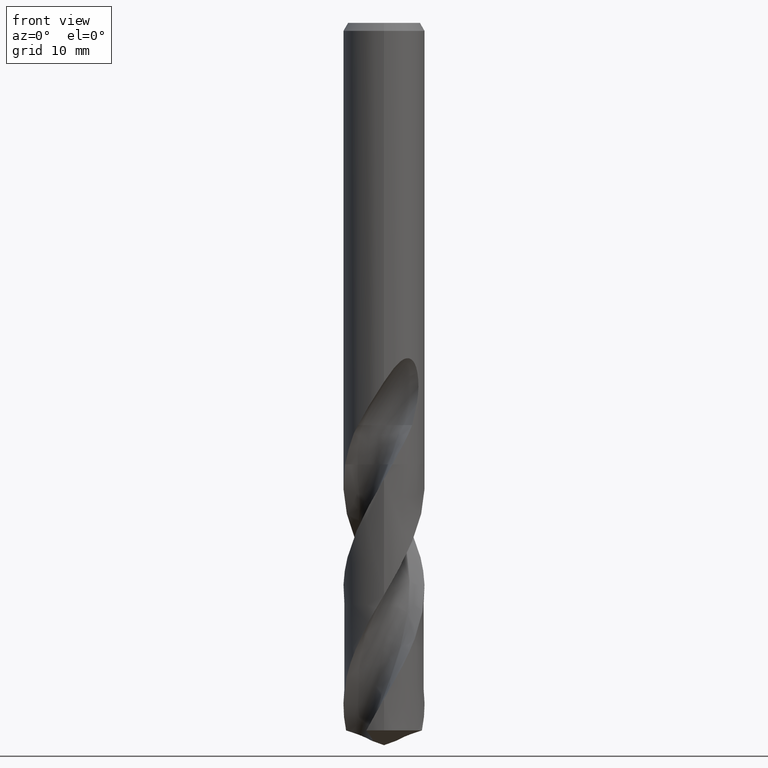
[diagram: clean part render]
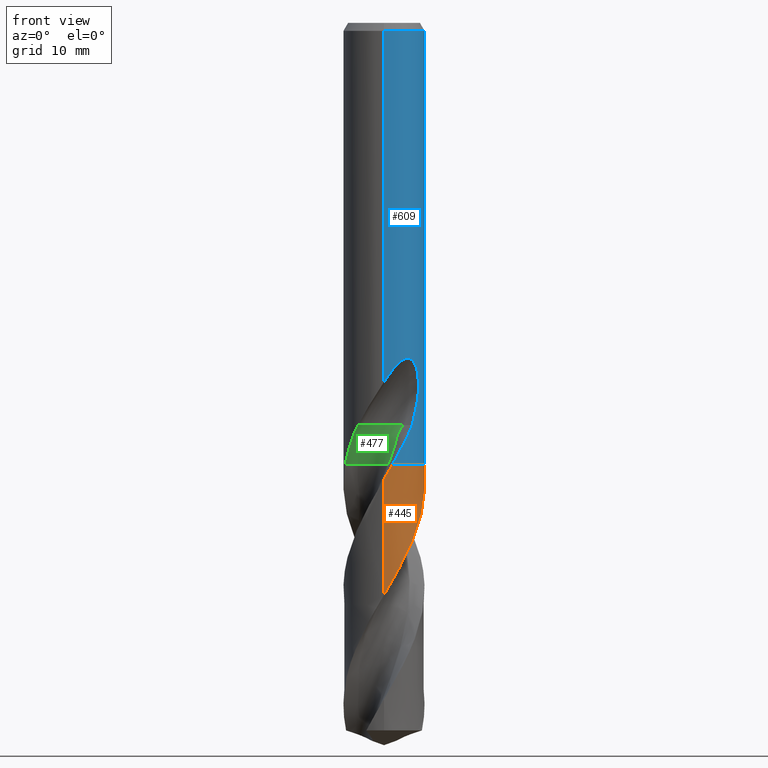
[diagram: same view with three faces highlighted in distinct colors, each labeled with its STEP entity id]
A machine part, front view with three faces highlighted in distinct colors.
Their STEP definitions:

[orange] entity #445 — the highlighted conical surface has half-angle 0 deg.
#303=EDGE_CURVE('',#553,#651,#834,.T.);
#383=EDGE_CURVE('',#525,#549,#923,.T.);
#387=EDGE_CURVE('',#635,#651,#928,.T.);
#445=ADVANCED_FACE('',(#994),#995,.T.);
#455=EDGE_CURVE('',#549,#635,#1006,.T.);
#515=EDGE_CURVE('',#689,#525,#1069,.T.);
#525=VERTEX_POINT('',#1079);
#549=VERTEX_POINT('',#1103);
#553=VERTEX_POINT('',#1107);
#631=EDGE_CURVE('',#553,#689,#1197,.T.);
#635=VERTEX_POINT('',#1201);
#651=VERTEX_POINT('',#1218);
#689=VERTEX_POINT('',#1259);
#834=LINE('',#1443,#1444);
#923=CIRCLE('',#3046,4.9999);
#928=B_SPLINE_CURVE_WITH_KNOTS('',3,(#3052,#3053,#3054,#3055,#3056,#3057,#3058,#3059,#3060,#3061,#3062,#3063,#3064,#3065,#3066,#3067,#3068,#3069,#3070,#3071,#3072,#3073,#3074,#3075,#3076,#3077,#3078,#3079,#3080,#3081,#3082,#3083,#3084,#3085,#3086,#3087,#3088,#3089,#3090,#3091,#3092,#3093,#3094,#3095,#3096,#3097,#3098,#3099,#3100,#3101,#3102,#3103,#3104,#3105),.UNSPECIFIED.,.F.,.F.,(4,2,2,2,2,2,2,2,2,2,2,2,2,2,2,2,2,2,2,2,2,2,2,2,2,2,4),(0.0,0.264834354782632,3.10607837456257,5.02886796979975,6.95642936212634,7.92422596499208,9.85403252899817,10.8220364081458,12.7499511240344,13.7180630526288,14.6824548368937,16.6043571756666,17.5683239993302,19.491061672004,20.4541860253828,22.3770398204773,23.3398680642765,25.1511006929768,26.7403276494627,28.1348994856573,29.353524718028,30.421932590647,32.2944977959953,33.6978301952892,34.7510513298346,36.3306601333208,37.9107965534202),.UNSPECIFIED.);
#994=FACE_OUTER_BOUND('',#4213,.T.);
#995=CONICAL_SURFACE('',#4214,4.99995,3.05062678397599E-006);
#1006=B_SPLINE_CURVE_WITH_KNOTS('',3,(#4255,#4256,#4257,#4258),.UNSPECIFIED.,.F.,.F.,(4,4),(0.0,0.0107286267173751),.UNSPECIFIED.);
#1069=B_SPLINE_CURVE_WITH_KNOTS('',3,(#4910,#4911,#4912,#4913),.UNSPECIFIED.,.F.,.F.,(4,4),(0.0,0.0132116816660889),.UNSPECIFIED.);
#1079=CARTESIAN_POINT('',(4.78526772431986,1.44921110145575,-54.4));
#1103=CARTESIAN_POINT('',(1.04090529583752,-4.89034928968243,-54.4));
#1107=CARTESIAN_POINT('',(7.41081337689941E-015,-4.99994908142823,-70.4889652199841));
#1197=B_SPLINE_CURVE_WITH_KNOTS('',3,(#6530,#6531,#6532,#6533,#6534,#6535,#6536,#6537,#6538,#6539,#6540,#6541,#6542,#6543,#6544,#6545,#6546,#6547,#6548,#6549,#6550,#6551,#6552,#6553,#6554,#6555,#6556,#6557,#6558,#6559,#6560,#6561,#6562,#6563,#6564,#6565,#6566,#6567,#6568,#6569,#6570,#6571,#6572,#6573,#6574,#6575,#6576,#6577,#6578,#6579,#6580,#6581,#6582,#6583,#6584,#6585,#6586,#6587,#6588,#6589,#6590,#6591,#6592,#6593,#6594,#6595,#6596,#6597,#6598,#6599),.UNSPECIFIED.,.F.,.F.,(4,2,2,2,2,2,2,2,2,2,2,2,2,2,2,2,2,2,2,2,2,2,2,2,2,2,2,2,2,2,2,2,2,2,4),(0.0,2.05429729317254,3.02092453939331,3.98584751367142,5.45632089989275,6.9096276474784,8.11845338289118,8.89669368907466,9.76801226681009,11.0932672178869,11.8051307631013,12.6098325117245,14.0547136283374,15.7185009497101,17.2918773532904,18.257214250102,19.6838524850279,20.3973353351116,21.1086356726227,22.5350732559565,23.2484089585969,23.9595272069253,25.3856806440848,26.0989109485617,26.7852095475696,28.2112832181968,28.8185005331749,29.9543574663147,31.9487887731694,32.3216844790026,33.7236658319796,35.8262440319454,36.8770313067006,37.4014931698913,37.9291789994367),.UNSPECIFIED.);
#1201=CARTESIAN_POINT('',(1.03806906670148,-4.89095213381667,-54.405));
#1218=CARTESIAN_POINT('',(-5.41980342286795E-012,-4.99990552066724,-56.2096829324038));
#1259=CARTESIAN_POINT('',(4.78610130798976,1.44645583056904,-54.405));
#1443=CARTESIAN_POINT('',(6.10772151085697E-016,-4.99995,-70.7900744143345));
#1444=VECTOR('',#7667,1.0);
#3046=AXIS2_PLACEMENT_3D('',#7762,#7763,#7764);
#3052=CARTESIAN_POINT('',(1.03901407680336,-4.89075146167878,-54.4033340909359));
#3053=CARTESIAN_POINT('',(0.995695011876081,-4.89995460426447,-54.4797002283534));
#3054=CARTESIAN_POINT('',(0.952271957141532,-4.90857826840057,-54.5560897050505));
#3055=CARTESIAN_POINT('',(0.441979737062156,-5.00290082920154,-55.4516984393552));
#3056=CARTESIAN_POINT('',(-0.034910712468419,-5.02228982532243,-56.2671596302699));
#3057=CARTESIAN_POINT('',(-0.827132466794705,-4.94148270004658,-57.6405910786163));
#3058=CARTESIAN_POINT('',(-1.14301536068961,-4.87810927380843,-58.1941116235513));
#3059=CARTESIAN_POINT('',(-1.75899224442551,-4.69136736971405,-59.3041771576803));
#3060=CARTESIAN_POINT('',(-2.05752798379761,-4.56831137744942,-59.8586217949857));
#3061=CARTESIAN_POINT('',(-2.48493656181344,-4.34170816158011,-60.693506143294));
#3062=CARTESIAN_POINT('',(-2.62407697836327,-4.25906014595346,-60.9724008368854));
#3063=CARTESIAN_POINT('',(-3.02803149454791,-3.99178123924683,-61.8077970976994));
#3064=CARTESIAN_POINT('',(-3.2791622106405,-3.78818273357308,-62.3627752398587));
#3065=CARTESIAN_POINT('',(-3.62412314541868,-3.44835682055426,-63.1983445443877));
#3066=CARTESIAN_POINT('',(-3.73380274906721,-3.32929123645904,-63.4772883798638));
#3067=CARTESIAN_POINT('',(-4.0441333974328,-2.9577285721158,-64.3121980192506));
#3068=CARTESIAN_POINT('',(-4.2262917679802,-2.69101534168901,-64.8667567140023));
#3069=CARTESIAN_POINT('',(-4.45942728309845,-2.26694151161799,-65.7018187547826));
#3070=CARTESIAN_POINT('',(-4.53045271076605,-2.12144878986418,-65.9807892644802));
#3071=CARTESIAN_POINT('',(-4.65792056381432,-1.82459278493136,-66.5379400636674));
#3072=CARTESIAN_POINT('',(-4.71431900241051,-1.67348554936499,-66.8156492168276));
#3073=CARTESIAN_POINT('',(-4.8609628203339,-1.21392734077096,-67.647884572259));
#3074=CARTESIAN_POINT('',(-4.9289125922761,-0.899158746878028,-68.2011942454544));
#3075=CARTESIAN_POINT('',(-4.98488448640762,-0.419936321306604,-69.0332640227687));
#3076=CARTESIAN_POINT('',(-4.9958273951645,-0.259079894885443,-69.310878704665));
#3077=CARTESIAN_POINT('',(-5.00528607876063,0.223311678451802,-70.1433005063595));
#3078=CARTESIAN_POINT('',(-4.98059432889951,0.544548472744087,-70.6968361351443));
#3079=CARTESIAN_POINT('',(-4.89748210071599,1.01986519031346,-71.5289520691335));
#3080=CARTESIAN_POINT('',(-4.86210312482399,1.17703003266591,-71.8063464755515));
#3081=CARTESIAN_POINT('',(-4.73357933721516,1.64197440140244,-72.6386338176121));
#3082=CARTESIAN_POINT('',(-4.61825600983881,1.94284989172392,-73.1922428457686));
#3083=CARTESIAN_POINT('',(-4.40299017043398,2.37469932249535,-74.0243740663654));
#3084=CARTESIAN_POINT('',(-4.32426295238088,2.515205768772,-74.3017184098444));
#3085=CARTESIAN_POINT('',(-4.078345906387,2.90833125444914,-75.1017909272049));
#3086=CARTESIAN_POINT('',(-3.89476211230535,3.14995497505016,-75.6233827728115));
#3087=CARTESIAN_POINT('',(-3.51109244732219,3.56966898446677,-76.6040193818392));
#3088=CARTESIAN_POINT('',(-3.31647442975321,3.7511656429007,-77.0615206375648));
#3089=CARTESIAN_POINT('',(-2.92585458700816,4.06120945856494,-77.9221664861772));
#3090=CARTESIAN_POINT('',(-2.73332746277062,4.19321347607857,-78.3239232495013));
#3091=CARTESIAN_POINT('',(-2.35651411527968,4.41453557652127,-79.0775370302172));
#3092=CARTESIAN_POINT('',(-2.17469089738421,4.50688071023073,-79.4285650644274));
#3093=CARTESIAN_POINT('',(-1.82392369636415,4.65886018419506,-80.0882401904462));
#3094=CARTESIAN_POINT('',(-1.65634511666801,4.72104098759288,-80.3962446270466));
#3095=CARTESIAN_POINT('',(-1.18680762252254,4.86716980070714,-81.2444529624024));
#3096=CARTESIAN_POINT('',(-0.879831469488342,4.9319050702808,-81.7828516414744));
#3097=CARTESIAN_POINT('',(-0.335856961293103,4.99420451509802,-82.7278039778645));
#3098=CARTESIAN_POINT('',(-0.101185707882085,5.00446823030419,-83.132175894254));
#3099=CARTESIAN_POINT('',(0.309440078427489,4.99351190389034,-83.8406834472438));
#3100=CARTESIAN_POINT('',(0.485107461978081,4.97951669943314,-84.1441159360223));
#3101=CARTESIAN_POINT('',(0.921452903285002,4.92144332194938,-84.9035049685887));
#3102=CARTESIAN_POINT('',(1.18014359054775,4.86590457086573,-85.3584855009193));
#3103=CARTESIAN_POINT('',(1.68652639658181,4.71438960522136,-86.2697077743555));
#3104=CARTESIAN_POINT('',(1.93312373234553,4.61873067432105,-86.7241371661406));
#3105=CARTESIAN_POINT('',(2.17087202278629,4.50414416517541,-87.180148828669));
#4213=EDGE_LOOP('',(#7856,#7857,#7858,#7859,#7860,#7861));
#4214=AXIS2_PLACEMENT_3D('',#7862,#7863,#7864);
#4255=CARTESIAN_POINT('',(1.04090529583752,-4.89034928968243,-54.4));
#4256=CARTESIAN_POINT('',(1.039150530119,-4.89072279922291,-54.4030936318518));
#4257=CARTESIAN_POINT('',(1.03739559723308,-4.89109535708037,-54.4061872828513));
#4258=CARTESIAN_POINT('',(1.03564049796286,-4.89146696320244,-54.4092809546768));
#4910=CARTESIAN_POINT('',(4.78717413204347,1.44290130943914,-54.4114499205538));
#4911=CARTESIAN_POINT('',(4.78654010975879,1.44500479139188,-54.4076331600426));
#4912=CARTESIAN_POINT('',(4.78590464069591,1.44710805576308,-54.4038165190355));
#4913=CARTESIAN_POINT('',(4.78526772431986,1.44921110145574,-54.4));
#6530=CARTESIAN_POINT('',(-4.67258431461034,1.77959428602631,-87.180148828669));
#6531=CARTESIAN_POINT('',(-4.79494292799146,1.45831882722392,-86.5879372099173));
#6532=CARTESIAN_POINT('',(-4.88373123893626,1.12569461910378,-85.9917033826672));
#6533=CARTESIAN_POINT('',(-4.96319467211637,0.626716938841725,-85.1203821906135));
#6534=CARTESIAN_POINT('',(-4.98086169969103,0.465920614277307,-84.8421027179686));
#6535=CARTESIAN_POINT('',(-5.00053725898476,0.14346893172097,-84.2850002725866));
#6536=CARTESIAN_POINT('',(-5.00255790588788,-0.0178882904752019,-84.0061764410056));
#6537=CARTESIAN_POINT('',(-4.98798243455458,-0.424617344004865,-83.3038469725547));
#6538=CARTESIAN_POINT('',(-4.96108629136707,-0.669333659648307,-82.8814220507427));
#6539=CARTESIAN_POINT('',(-4.87194356121137,-1.15026964679366,-82.0386457829045));
#6540=CARTESIAN_POINT('',(-4.81029706678722,-1.38554110274595,-81.6186688715131));
#6541=CARTESIAN_POINT('',(-4.66674903202885,-1.80609441106724,-80.8514279625853));
#6542=CARTESIAN_POINT('',(-4.59001326691875,-1.99309601044055,-80.5040278167282));
#6543=CARTESIAN_POINT('',(-4.44546986556587,-2.29227199309209,-79.9317201946541));
#6544=CARTESIAN_POINT('',(-4.38435144784283,-2.40709666037263,-79.7077754396196));
#6545=CARTESIAN_POINT('',(-4.24559327345399,-2.64496774407156,-79.2324197803678));
#6546=CARTESIAN_POINT('',(-4.1669103869809,-2.76726795323751,-78.9808203753599));
#6547=CARTESIAN_POINT('',(-3.95521493891364,-3.06675170434932,-78.3477836185863));
#6548=CARTESIAN_POINT('',(-3.81555994722421,-3.23887539201589,-77.9671140916915));
#6549=CARTESIAN_POINT('',(-3.58387284478626,-3.48851275998375,-77.3803500495614));
#6550=CARTESIAN_POINT('',(-3.49989502630865,-3.57275006303665,-77.1754443139902));
#6551=CARTESIAN_POINT('',(-3.31494034673019,-3.74551553709027,-76.7383517858601));
#6552=CARTESIAN_POINT('',(-3.21321604861014,-3.83314114436571,-76.505986691696));
#6553=CARTESIAN_POINT('',(-2.91897385922932,-4.06662665052798,-75.8574804540521));
#6554=CARTESIAN_POINT('',(-2.71925790273272,-4.20281422104368,-75.4425820636229));
#6555=CARTESIAN_POINT('',(-2.26972163820177,-4.46378465073885,-74.546945720575));
#6556=CARTESIAN_POINT('',(-2.01806294176377,-4.5830447558027,-74.0663516809632));
#6557=CARTESIAN_POINT('',(-1.51171961828781,-4.77319413359503,-73.1336044724424));
#6558=CARTESIAN_POINT('',(-1.25876768533103,-4.84604149091922,-72.6822890809693));
#6559=CARTESIAN_POINT('',(-0.843339872689388,-4.93095413716219,-71.9507797654526));
#6560=CARTESIAN_POINT('',(-0.684074691771604,-4.9555523960991,-71.6719775822123));
#6561=CARTESIAN_POINT('',(-0.287259167602122,-4.99736162774042,-70.9829291616075));
#6562=CARTESIAN_POINT('',(-0.0489259778774734,-5.00538943603341,-70.5735330613887));
#6563=CARTESIAN_POINT('',(0.308411006226471,-4.99185032992233,-69.9574520387444));
#6564=CARTESIAN_POINT('',(0.42723367763832,-4.9830814162753,-69.752198279223));
#6565=CARTESIAN_POINT('',(0.663448172056883,-4.95715306586637,-69.3417915211873));
#6566=CARTESIAN_POINT('',(0.780796266653033,-4.94002968290636,-69.1365661563507));
#6567=CARTESIAN_POINT('',(1.13170167971936,-4.875995539607,-68.5206620423886));
#6568=CARTESIAN_POINT('',(1.36267071002528,-4.81657305295508,-68.1112595751166));
#6569=CARTESIAN_POINT('',(1.70174036001845,-4.70294494783633,-67.4951667793012));
#6570=CARTESIAN_POINT('',(1.81327919786761,-4.66106966713012,-67.2899164176208));
#6571=CARTESIAN_POINT('',(2.0326102397932,-4.56967691366928,-66.8795225518548));
#6572=CARTESIAN_POINT('',(2.14036837639912,-4.52020784954497,-66.674303407179));
#6573=CARTESIAN_POINT('',(2.45899338106607,-4.35997055689783,-66.0584206748883));
#6574=CARTESIAN_POINT('',(2.66386406555531,-4.23792342780137,-65.6490287057368));
#6575=CARTESIAN_POINT('',(2.95720583156475,-4.03341915234506,-65.032952167389));
#6576=CARTESIAN_POINT('',(3.05244131923427,-3.9618278626987,-64.8277017433153));
#6577=CARTESIAN_POINT('',(3.23396305602237,-3.81495733916078,-64.4244318988428));
#6578=CARTESIAN_POINT('',(3.3204077479341,-3.73996076183593,-64.2263602917509));
#6579=CARTESIAN_POINT('',(3.57856339930344,-3.4999699533601,-63.6176224167153));
#6580=CARTESIAN_POINT('',(3.74120198398545,-3.32558285757688,-63.2082237746444));
#6581=CARTESIAN_POINT('',(3.95465428038341,-3.06108851309406,-62.6226922389047));
#6582=CARTESIAN_POINT('',(4.01593621187871,-2.98023095458822,-62.4479135110268));
#6583=CARTESIAN_POINT('',(4.18456487851321,-2.7431003149763,-61.9457285462706));
#6584=CARTESIAN_POINT('',(4.28557804692676,-2.58245112908231,-61.6176041218119));
#6585=CARTESIAN_POINT('',(4.53831871237794,-2.12459124800796,-60.7156050932869));
#6586=CARTESIAN_POINT('',(4.66963122093672,-1.81777495074154,-60.1449786795326));
#6587=CARTESIAN_POINT('',(4.78809150991843,-1.44124943098545,-59.4624791462882));
#6588=CARTESIAN_POINT('',(4.80562622150739,-1.38165650929049,-59.3549101828123));
#6589=CARTESIAN_POINT('',(4.88386471847539,-1.09620332575488,-58.8431265996966));
#6590=CARTESIAN_POINT('',(4.92986379880778,-0.866345590868492,-58.4403127538849));
#6591=CARTESIAN_POINT('',(5.00415860082423,-0.284898132359493,-57.4309143600991));
#6592=CARTESIAN_POINT('',(5.01178453469534,0.0675147034267486,-56.8254473658177));
#6593=CARTESIAN_POINT('',(4.96775987715167,0.5926598840327,-55.9168381112887));
#6594=CARTESIAN_POINT('',(4.94388785199377,0.766648634373312,-55.6144777344647));
#6595=CARTESIAN_POINT('',(4.89453206769689,1.02481064231428,-55.1604424516152));
#6596=CARTESIAN_POINT('',(4.87586661938701,1.11020832019988,-55.0093184733803));
#6597=CARTESIAN_POINT('',(4.83401412444395,1.28024605107181,-54.7058007615447));
#6598=CARTESIAN_POINT('',(4.81105192962055,1.36390792363095,-54.5547954998977));
#6599=CARTESIAN_POINT('',(4.78606095883439,1.44658931748436,-54.404757761063));
#7667=DIRECTION('',(-3.73581694279192E-022,3.05062678397126E-006,0.999999999995347));
#7762=CARTESIAN_POINT('',(0.0,0.0,-54.4));
#7763=DIRECTION('',(0.0,0.0,-1.0));
#7764=DIRECTION('',(0.0,1.0,0.0));
#7856=ORIENTED_EDGE('',*,*,#303,.F.);
#7857=ORIENTED_EDGE('',*,*,#631,.T.);
#7858=ORIENTED_EDGE('',*,*,#515,.T.);
#7859=ORIENTED_EDGE('',*,*,#383,.T.);
#7860=ORIENTED_EDGE('',*,*,#455,.T.);
#7861=ORIENTED_EDGE('',*,*,#387,.T.);
#7862=CARTESIAN_POINT('',(0.0,0.0,-70.7900744143345));
#7863=DIRECTION('',(0.0,-0.0,-1.0));
#7864=DIRECTION('',(0.0,1.0,0.0));

[blue] entity #609 — the highlighted cylindrical surface (partial cylindrical patch) has radius 5 mm, axis along (-0, -0, 1).
#289=VERTEX_POINT('',#820);
#293=VERTEX_POINT('',#824);
#301=EDGE_CURVE('',#289,#451,#832,.T.);
#335=EDGE_CURVE('',#339,#355,#869,.T.);
#339=VERTEX_POINT('',#873);
#345=VERTEX_POINT('',#880);
#353=EDGE_CURVE('',#637,#451,#890,.T.);
#355=VERTEX_POINT('',#892);
#367=EDGE_CURVE('',#733,#293,#906,.T.);
#413=EDGE_CURVE('',#695,#427,#957,.T.);
#427=VERTEX_POINT('',#974);
#451=VERTEX_POINT('',#1001);
#463=EDGE_CURVE('',#623,#685,#1014,.T.);
#483=EDGE_CURVE('',#545,#655,#1036,.T.);
#501=EDGE_CURVE('',#685,#545,#1055,.T.);
#519=VERTEX_POINT('',#1073);
#521=VERTEX_POINT('',#1075);
#545=VERTEX_POINT('',#1099);
#551=EDGE_CURVE('',#355,#733,#1105,.T.);
#589=EDGE_CURVE('',#743,#695,#1146,.T.);
#591=EDGE_CURVE('',#521,#289,#1148,.T.);
#597=EDGE_CURVE('',#519,#741,#1156,.T.);
#609=ADVANCED_FACE('',(#1170),#1171,.T.);
#623=VERTEX_POINT('',#1187);
#633=EDGE_CURVE('',#655,#767,#1199,.T.);
#637=VERTEX_POINT('',#1203);
#655=VERTEX_POINT('',#1222);
#665=EDGE_CURVE('',#339,#427,#1233,.T.);
#667=EDGE_CURVE('',#767,#345,#1235,.T.);
#685=VERTEX_POINT('',#1255);
#687=EDGE_CURVE('',#741,#743,#1257,.T.);
#695=VERTEX_POINT('',#1265);
#705=EDGE_CURVE('',#791,#623,#1276,.T.);
#733=VERTEX_POINT('',#1306);
#741=VERTEX_POINT('',#1314);
#743=VERTEX_POINT('',#1316);
#745=EDGE_CURVE('',#519,#345,#1318,.T.);
#767=VERTEX_POINT('',#1343);
#781=EDGE_CURVE('',#521,#293,#1358,.T.);
#791=VERTEX_POINT('',#1368);
#799=EDGE_CURVE('',#637,#791,#1377,.T.);
#820=CARTESIAN_POINT('',(3.18607244924171,3.85343254101884,-49.565));
#824=CARTESIAN_POINT('',(1.04093319368126,-4.89044559179351,-54.4));
#832=B_SPLINE_CURVE_WITH_KNOTS('',3,(#1411,#1412,#1413,#1414,#1415,#1416,#1417,#1418,#1419,#1420,#1421,#1422,#1423,#1424,#1425,#1426,#1427,#1428,#1429,#1430,#1431,#1432,#1433,#1434,#1435,#1436,#1437,#1438,#1439,#1440),.UNSPECIFIED.,.F.,.F.,(4,2,2,2,2,2,2,2,2,2,2,2,2,2,4),(0.0,2.44971843954591,3.7873222723187,4.99885466203345,6.40636361474204,8.0971041355139,9.56249771143035,10.2265642104238,10.7119158069646,11.1712003441117,11.753830153577,12.6062411907474,13.8180437081639,14.611037339573,15.444419765068),.UNSPECIFIED.);
#869=B_SPLINE_CURVE_WITH_KNOTS('',3,(#1579,#1580,#1581,#1582,#1583,#1584,#1585,#1586,#1587,#1588,#1589,#1590,#1591,#1592,#1593,#1594,#1595,#1596,#1597,#1598,#1599,#1600,#1601,#1602,#1603,#1604,#1605,#1606,#1607,#1608),.UNSPECIFIED.,.F.,.F.,(4,2,2,2,2,2,2,2,2,2,2,2,2,2,4),(0.0,2.4497184395459,3.78732227231862,4.99885466203334,6.40636361474201,8.09710413551417,9.56249771143069,10.2265642104242,10.7119158069651,11.1712003441123,11.7538301535774,12.6062411907478,13.8180437081641,14.6110373395728,15.4444197650673),.UNSPECIFIED.);
#873=CARTESIAN_POINT('',(1.48556251393199E-012,-5.0,-44.2501144457999));
#880=CARTESIAN_POINT('',(-9.82055749138764E-015,5.0,-36.0232688117743));
#890=LINE('',#2125,#2126);
#892=CARTESIAN_POINT('',(4.06821081647643,-2.90683001785522,-46.8270988560816));
#906=B_SPLINE_CURVE_WITH_KNOTS('',3,(#2715,#2716,#2717,#2718,#2719,#2720,#2721,#2722,#2723,#2724,#2725,#2726,#2727,#2728),.UNSPECIFIED.,.F.,.F.,(4,2,2,2,2,2,4),(0.0,1.41130134675754,1.86634793631971,2.75693695072471,4.11701357141824,4.28586612145084,5.47416387373615),.UNSPECIFIED.);
#957=CIRCLE('',#3200,5.0);
#974=CARTESIAN_POINT('',(6.12303176911189E-016,-5.0,-1.0));
#1001=CARTESIAN_POINT('',(-1.48556251393199E-012,5.0,-44.2501144457999));
#1014=LINE('',#4275,#4276);
#1036=LINE('',#4770,#4771);
#1055=B_SPLINE_CURVE_WITH_KNOTS('',3,(#4883,#4884,#4885,#4886,#4887,#4888,#4889,#4890,#4891,#4892),.UNSPECIFIED.,.F.,.F.,(4,2,2,2,4),(8.03978938391207,8.34870158568316,8.65761378745426,8.96684541549285,9.27607704353144),.UNSPECIFIED.);
#1073=CARTESIAN_POINT('',(-6.12303176911188E-016,5.0,-28.0011862850709));
#1075=CARTESIAN_POINT('',(4.78535147944363,1.44927955142778,-54.4));
#1099=CARTESIAN_POINT('',(1.33721006514658,4.81786978255646,-37.2901657003257));
#1105=B_SPLINE_CURVE_WITH_KNOTS('',3,(#5048,#5049,#5050,#5051),.UNSPECIFIED.,.F.,.F.,(4,4),(0.0,2.87359950649881),.UNSPECIFIED.);
#1146=ELLIPSE('',#5453,143.26854173922,5.0);
#1148=B_SPLINE_CURVE_WITH_KNOTS('',3,(#5456,#5457,#5458,#5459,#5460,#5461,#5462,#5463,#5464,#5465,#5466,#5467,#5468,#5469),.UNSPECIFIED.,.F.,.F.,(4,2,2,2,2,2,4),(0.0,0.700527965120455,1.79769118242771,2.77274305637981,3.92291080620394,10.70269694732,20.3837803299996),.UNSPECIFIED.);
#1156=ELLIPSE('',#5697,7.33139592819812,5.0);
#1170=FACE_OUTER_BOUND('',#6415,.T.);
#1171=CYLINDRICAL_SURFACE('',#6416,5.0);
#1187=CARTESIAN_POINT('',(0.873560781758957,4.92309776061503,-36.3198931596091));
#1199=B_SPLINE_CURVE_WITH_KNOTS('',3,(#6602,#6603,#6604,#6605,#6606,#6607,#6608,#6609,#6610,#6611),.UNSPECIFIED.,.F.,.F.,(4,2,2,2,4),(0.618463277568802,0.927694916353203,1.2369265551376,1.54583876733634,1.85475097953508),.UNSPECIFIED.);
#1203=CARTESIAN_POINT('',(-4.2179236924284E-015,5.0,-38.0310253601033));
#1222=CARTESIAN_POINT('',(1.33721006514658,4.81786978255647,-35.5150484364821));
#1233=LINE('',#6800,#6801);
#1235=B_SPLINE_CURVE_WITH_KNOTS('',3,(#6804,#6805,#6806,#6807,#6808,#6809,#6810,#6811,#6812,#6813,#6814,#6815,#6816,#6817,#6818,#6819,#6820,#6821,#6822,#6823,#6824,#6825,#6826,#6827,#6828,#6829,#6830),.UNSPECIFIED.,.F.,.F.,(4,2,3,2,2,2,2,2,2,2,2,2,4),(-0.542486104801738,-0.271243052400869,0.0,0.271243052400869,0.542486104801738,0.814298814936944,1.08611152507215,1.35696845964793,1.62782539422372,1.89896433698445,2.17010327974519,2.44124222250593,2.71238116526667),.UNSPECIFIED.);
#1255=CARTESIAN_POINT('',(0.873560781758956,4.92309776061503,-37.7587351791531));
#1257=B_SPLINE_CURVE_WITH_KNOTS('',3,(#6863,#6864,#6865,#6866,#6867,#6868,#6869,#6870,#6871,#6872),.UNSPECIFIED.,.F.,.F.,(4,2,2,2,4),(13.601244724545,13.9877201562878,14.2781014313783,14.5684827064689,14.8588639815594),.UNSPECIFIED.);
#1265=CARTESIAN_POINT('',(2.91341920609476,4.0634946203432,-1.0));
#1276=ELLIPSE('',#6919,15.2399728668489,5.0);
#1306=CARTESIAN_POINT('',(3.4753867123766,-3.59467483918033,-49.565));
#1314=CARTESIAN_POINT('',(3.54362577285888,3.52742347641027,-26.4220412980564));
#1316=CARTESIAN_POINT('',(3.83705374969661,3.20577892593035,-25.5617638699384));
#1318=LINE('',#7471,#7472);
#1343=CARTESIAN_POINT('',(0.799431726384364,4.93567714856332,-35.000000276873));
#1358=CIRCLE('',#7625,5.0);
#1368=CARTESIAN_POINT('',(0.29010312703583,4.99157692274536,-37.9998328990228));
#1377=B_SPLINE_CURVE_WITH_KNOTS('',3,(#7650,#7651,#7652,#7653,#7654,#7655,#7656,#7657,#7658,#7659,#7660,#7661,#7662,#7663,#7664,#7665),.UNSPECIFIED.,.F.,.F.,(4,2,2,2,2,2,2,4),(5.87517564836087,6.18447732711524,6.49384941721167,6.80322150730809,7.11259359740452,7.42196568750094,7.73087791711931,8.03979014673767),.UNSPECIFIED.);
#1411=CARTESIAN_POINT('',(3.18607244924171,3.85343254101884,-49.565));
#1412=CARTESIAN_POINT('',(2.85625445611022,4.12613071595629,-48.8695526935702));
#1413=CARTESIAN_POINT('',(2.47703856885131,4.36854043294652,-48.2211713196178));
#1414=CARTESIAN_POINT('',(1.81579915443098,4.66566442446862,-47.138005997335));
#1415=CARTESIAN_POINT('',(1.57785411026247,4.75113578318713,-46.7569119660955));
#1416=CARTESIAN_POINT('',(1.11722259169627,4.87887566369601,-46.0192128316446));
#1417=CARTESIAN_POINT('',(0.896592818142335,4.92400585821779,-45.6660462331205));
#1418=CARTESIAN_POINT('',(0.41902232258544,4.98913983717464,-44.9048785720036));
#1419=CARTESIAN_POINT('',(0.158092444922123,5.00443147882401,-44.490919460658));
#1420=CARTESIAN_POINT('',(-0.421366124916096,4.99224268123203,-43.6053241941917));
#1421=CARTESIAN_POINT('',(-0.764926555280523,4.9545432294068,-43.1014107767617));
#1422=CARTESIAN_POINT('',(-1.42743838040771,4.80229497474226,-42.2704923951023));
#1423=CARTESIAN_POINT('',(-1.79397957869579,4.68630108750047,-41.8650368539511));
#1424=CARTESIAN_POINT('',(-2.34873617524853,4.41818492332311,-41.4853684340443));
#1425=CARTESIAN_POINT('',(-2.53236436009185,4.31696486059904,-41.3915371394018));
#1426=CARTESIAN_POINT('',(-2.85412313903685,4.10855027503912,-41.319457948653));
#1427=CARTESIAN_POINT('',(-2.98609447476204,4.01363671583658,-41.3181120973668));
#1428=CARTESIAN_POINT('',(-3.23189820912501,3.81813460960383,-41.3811965770415));
#1429=CARTESIAN_POINT('',(-3.33940049461103,3.72371100151107,-41.440343836465));
#1430=CARTESIAN_POINT('',(-3.55816645014596,3.51678905170117,-41.6254087702394));
#1431=CARTESIAN_POINT('',(-3.65937747991303,3.40955691248747,-41.7620459115826));
#1432=CARTESIAN_POINT('',(-3.86669039079412,3.17540770717445,-42.1362008128703));
#1433=CARTESIAN_POINT('',(-3.96578183188773,3.04789673003821,-42.4137131712858));
#1434=CARTESIAN_POINT('',(-4.15211961116785,2.79185633693398,-43.1901619048561));
#1435=CARTESIAN_POINT('',(-4.21948501838441,2.6827954859585,-43.7431383070589));
#1436=CARTESIAN_POINT('',(-4.25282809849582,2.62946232971101,-44.7665613266458));
#1437=CARTESIAN_POINT('',(-4.2449881837555,2.64246163236229,-45.1741388235467));
#1438=CARTESIAN_POINT('',(-4.18961389418805,2.72945556171017,-46.0013175314454));
#1439=CARTESIAN_POINT('',(-4.14017122200963,2.8061189001256,-46.417805346279));
#1440=CARTESIAN_POINT('',(-4.06821081647643,2.90683001785522,-46.8270988560816));
#1579=CARTESIAN_POINT('',(-3.18607244924171,-3.85343254101884,-49.565));
#1580=CARTESIAN_POINT('',(-2.85625445611022,-4.12613071595629,-48.8695526935702));
#1581=CARTESIAN_POINT('',(-2.47703856885131,-4.36854043294652,-48.2211713196178));
#1582=CARTESIAN_POINT('',(-1.81579915443099,-4.66566442446862,-47.138005997335));
#1583=CARTESIAN_POINT('',(-1.57785411026249,-4.75113578318713,-46.7569119660956));
#1584=CARTESIAN_POINT('',(-1.11722259169624,-4.87887566369602,-46.0192128316445));
#1585=CARTESIAN_POINT('',(-0.89659281814228,-4.9240058582178,-45.6660462331204));
#1586=CARTESIAN_POINT('',(-0.419022322585475,-4.98913983717463,-44.9048785720036));
#1587=CARTESIAN_POINT('',(-0.158092444922131,-5.00443147882401,-44.490919460658));
#1588=CARTESIAN_POINT('',(0.421366124916152,-4.99224268123203,-43.6053241941917));
#1589=CARTESIAN_POINT('',(0.764926555280542,-4.95454322940679,-43.1014107767617));
#1590=CARTESIAN_POINT('',(1.42743838040767,-4.80229497474226,-42.2704923951024));
#1591=CARTESIAN_POINT('',(1.79397957869578,-4.68630108750048,-41.8650368539511));
#1592=CARTESIAN_POINT('',(2.34873617524855,-4.41818492332311,-41.4853684340442));
#1593=CARTESIAN_POINT('',(2.53236436009185,-4.31696486059904,-41.3915371394018));
#1594=CARTESIAN_POINT('',(2.85412313903686,-4.10855027503912,-41.319457948653));
#1595=CARTESIAN_POINT('',(2.98609447476205,-4.01363671583658,-41.3181120973668));
#1596=CARTESIAN_POINT('',(3.23189820912499,-3.81813460960386,-41.3811965770415));
#1597=CARTESIAN_POINT('',(3.33940049461099,-3.72371100151111,-41.4403438364649));
#1598=CARTESIAN_POINT('',(3.55816645014597,-3.51678905170116,-41.6254087702394));
#1599=CARTESIAN_POINT('',(3.65937747991305,-3.40955691248744,-41.7620459115826));
#1600=CARTESIAN_POINT('',(3.86669039079413,-3.17540770717443,-42.1362008128703));
#1601=CARTESIAN_POINT('',(3.96578183188774,-3.0478967300382,-42.4137131712858));
#1602=CARTESIAN_POINT('',(4.15211961116781,-2.79185633693404,-43.1901619048559));
#1603=CARTESIAN_POINT('',(4.2194850183844,-2.68279548595851,-43.7431383070586));
#1604=CARTESIAN_POINT('',(4.25282809849582,-2.62946232971101,-44.7665613266457));
#1605=CARTESIAN_POINT('',(4.2449881837555,-2.64246163236228,-45.1741388235467));
#1606=CARTESIAN_POINT('',(4.18961389418805,-2.72945556171016,-46.0013175314454));
#1607=CARTESIAN_POINT('',(4.14017122200964,-2.8061189001256,-46.417805346279));
#1608=CARTESIAN_POINT('',(4.06821081647643,-2.90683001785522,-46.8270988560816));
#2125=CARTESIAN_POINT('',(-6.12303176911189E-016,5.0,-47.2));
#2126=VECTOR('',#7739,1.0);
#2715=CARTESIAN_POINT('',(3.4753867123766,-3.59467483918033,-49.565));
#2716=CARTESIAN_POINT('',(3.31438666903861,-3.75033214793332,-49.9787121363477));
#2717=CARTESIAN_POINT('',(3.14165816450673,-3.89750538683979,-50.3821776544138));
#2718=CARTESIAN_POINT('',(2.87854395132624,-4.08904402853208,-50.9323319592985));
#2719=CARTESIAN_POINT('',(2.81318112529487,-4.134288623899,-51.0656531073564));
#2720=CARTESIAN_POINT('',(2.61657921744364,-4.26353859737039,-51.4610728245812));
#2721=CARTESIAN_POINT('',(2.48525290391097,-4.34128557377707,-51.7211677971981));
#2722=CARTESIAN_POINT('',(2.1452094276923,-4.52242007013176,-52.3866864484327));
#2723=CARTESIAN_POINT('',(1.93213318130397,-4.61751978675388,-52.7917972111195));
#2724=CARTESIAN_POINT('',(1.68528290516163,-4.70751139217952,-53.245315946393));
#2725=CARTESIAN_POINT('',(1.65792829836997,-4.71721479802778,-53.2953631912872));
#2726=CARTESIAN_POINT('',(1.43749203465421,-4.79325594427974,-53.6973440679509));
#2727=CARTESIAN_POINT('',(1.24060401750197,-4.84794558143181,-54.0479901667685));
#2728=CARTESIAN_POINT('',(1.04093319368126,-4.89044559179353,-54.4));
#3200=AXIS2_PLACEMENT_3D('',#7818,#7819,#7820);
#4275=CARTESIAN_POINT('',(0.873560781758957,4.92309776061503,-37.0393141693811));
#4276=VECTOR('',#7879,1.0);
#4770=CARTESIAN_POINT('',(1.33721006514658,4.81786978255646,-36.4026070684039));
#4771=VECTOR('',#7915,1.0);
#4883=CARTESIAN_POINT('',(0.596736548110758,4.96426283471664,-37.9065353597382));
#4884=CARTESIAN_POINT('',(0.696940415976904,4.95221768077604,-37.8648861955132));
#4885=CARTESIAN_POINT('',(0.792829678386026,4.93756175251447,-37.8131364650754));
#4886=CARTESIAN_POINT('',(0.969955792779445,4.90584148938556,-37.6938507691423));
#4887=CARTESIAN_POINT('',(1.05119214028325,4.88880718483703,-37.6263060709848));
#4888=CARTESIAN_POINT('',(1.1950179267128,4.85565484960812,-37.4825325659411));
#4889=CARTESIAN_POINT('',(1.26262396516471,4.83834796167932,-37.4012621113954));
#4890=CARTESIAN_POINT('',(1.38199541925443,4.80561327380657,-37.2240986142183));
#4891=CARTESIAN_POINT('',(1.4337709692914,4.79021953794996,-37.1282061077952));
#4892=CARTESIAN_POINT('',(1.47544633659597,4.77734843902196,-37.0279929829259));
#5048=CARTESIAN_POINT('',(4.06821081652906,-2.90683001778158,-46.8270988561105));
#5049=CARTESIAN_POINT('',(3.90701493757903,-3.1324293181579,-47.7439571222845));
#5050=CARTESIAN_POINT('',(3.7127308177955,-3.36520692145851,-48.666271574145));
#5051=CARTESIAN_POINT('',(3.4753867123766,-3.59467483918033,-49.565));
#5453=AXIS2_PLACEMENT_3D('',#7973,#7974,#7975);
#5456=CARTESIAN_POINT('',(4.78535147944362,1.44927955142778,-54.4));
#5457=CARTESIAN_POINT('',(4.75157912966551,1.56079189824572,-54.1976363960056));
#5458=CARTESIAN_POINT('',(4.71372458032917,1.67173906079662,-53.9955493194835));
#5459=CARTESIAN_POINT('',(4.60585718704995,1.95453384547013,-53.4783149372476));
#5460=CARTESIAN_POINT('',(4.53305060792303,2.11764510027521,-53.181102373433));
#5461=CARTESIAN_POINT('',(4.37672266001776,2.42287785407124,-52.5982616237727));
#5462=CARTESIAN_POINT('',(4.29747111529796,2.56048645632344,-52.3243564808371));
#5463=CARTESIAN_POINT('',(4.11435877993659,2.84709185417196,-51.719806667997));
#5464=CARTESIAN_POINT('',(4.04117732715926,2.94449448331673,-51.4799713457041));
#5465=CARTESIAN_POINT('',(3.90148629493381,3.1334929830916,-51.0169648566912));
#5466=CARTESIAN_POINT('',(3.78592634225272,3.26931120817747,-50.7145059589502));
#5467=CARTESIAN_POINT('',(3.54467802714679,3.53261508940939,-50.1626854821956));
#5468=CARTESIAN_POINT('',(3.37962582394978,3.69339987714039,-49.8582166404461));
#5469=CARTESIAN_POINT('',(3.18607244924171,3.85343254101884,-49.565));
#5697=AXIS2_PLACEMENT_3D('',#7996,#7997,#7998);
#6415=EDGE_LOOP('',(#8011,#8012,#8013,#8014,#8015,#8016,#8017,#8018,#8019,#8020,#8021,#8022,#8023,#8024,#8025,#8026,#8027,#8028,#8029,#8030));
#6416=AXIS2_PLACEMENT_3D('',#8031,#8032,#8033);
#6602=CARTESIAN_POINT('',(1.47544634459503,4.77734843655151,-35.7772211678144));
#6603=CARTESIAN_POINT('',(1.43377097583397,4.79021953600577,-35.6770080394811));
#6604=CARTESIAN_POINT('',(1.38199542398865,4.8056132724731,-35.5811155297459));
#6605=CARTESIAN_POINT('',(1.26262396572432,4.83834796156109,-35.4039520264488));
#6606=CARTESIAN_POINT('',(1.19501792490561,4.8556548500921,-35.3226815690952));
#6607=CARTESIAN_POINT('',(1.05119213349515,4.88880718633437,-35.178908059153));
#6608=CARTESIAN_POINT('',(0.969955783216372,4.90584149133193,-35.1113633587199));
#6609=CARTESIAN_POINT('',(0.792829662772183,4.93756175507685,-34.9920776587655));
#6610=CARTESIAN_POINT('',(0.696940397087141,4.95221768350352,-34.9403279265819));
#6611=CARTESIAN_POINT('',(0.596736525802593,4.96426283739822,-34.8986787609541));
#6800=CARTESIAN_POINT('',(6.12303176911189E-016,-5.0,-47.2));
#6801=VECTOR('',#8096,1.0);
#6804=CARTESIAN_POINT('',(0.665122770091172,4.95556371169883,-34.8135963457478));
#6805=CARTESIAN_POINT('',(0.728735196954596,4.94702581852882,-34.8772777273236));
#6806=CARTESIAN_POINT('',(0.783964166103465,4.93829748078097,-34.9579436035979));
#6807=CARTESIAN_POINT('',(0.857301933462898,4.92609533329604,-35.1349114173306));
#6808=CARTESIAN_POINT('',(0.875400981188567,4.92277087849253,-35.2312276617865));
#6809=CARTESIAN_POINT('',(0.875400981188567,4.92277087849253,-35.3216420125868));
#6810=CARTESIAN_POINT('',(0.875400981188567,4.92277087849253,-35.4120563633871));
#6811=CARTESIAN_POINT('',(0.857301933462898,4.92609533329604,-35.5083726078429));
#6812=CARTESIAN_POINT('',(0.783964166103465,4.93829748078097,-35.6853404215757));
#6813=CARTESIAN_POINT('',(0.728735196954596,4.94702581852882,-35.76600629785));
#6814=CARTESIAN_POINT('',(0.601376746032753,4.96411953593411,-35.8935028030135));
#6815=CARTESIAN_POINT('',(0.520641197115554,4.97361399538109,-35.9488552844728));
#6816=CARTESIAN_POINT('',(0.343503822480858,4.98897870858442,-36.0223670116056));
#6817=CARTESIAN_POINT('',(0.247086219827461,4.9947129574863,-36.0405166027747));
#6818=CARTESIAN_POINT('',(0.0662849978754683,5.00037576555244,-36.0405166027747));
#6819=CARTESIAN_POINT('',(-0.0299853354073752,5.00069421157822,-36.022481035651));
#6820=CARTESIAN_POINT('',(-0.207042529230845,4.99649628332508,-35.9491606175219));
#6821=CARTESIAN_POINT('',(-0.287834149954029,4.99211780487336,-35.8938794313977));
#6822=CARTESIAN_POINT('',(-0.415469449620835,4.98311973872716,-35.7663325263823));
#6823=CARTESIAN_POINT('',(-0.470822894462521,4.97792007270922,-35.6855206130663));
#6824=CARTESIAN_POINT('',(-0.544264412763406,4.97042641093864,-35.5083690868499));
#6825=CARTESIAN_POINT('',(-0.562348199187247,4.96827580785033,-35.4120216601737));
#6826=CARTESIAN_POINT('',(-0.562348199187247,4.96827580785033,-35.2312623649999));
#6827=CARTESIAN_POINT('',(-0.544264412763406,4.97042641093864,-35.1349149383237));
#6828=CARTESIAN_POINT('',(-0.470822894462521,4.97792007270922,-34.9577634121072));
#6829=CARTESIAN_POINT('',(-0.415469449620836,4.98311973872716,-34.8769514987913));
#6830=CARTESIAN_POINT('',(-0.351618594554054,4.98762111271133,-34.8131448640467));
#6863=CARTESIAN_POINT('',(3.5124810915168,3.55843737920691,-26.4540846778413));
#6864=CARTESIAN_POINT('',(3.59343628541809,3.47852767883522,-26.3745350059696));
#6865=CARTESIAN_POINT('',(3.66218514708417,3.40501531873085,-26.2774092731815));
#6866=CARTESIAN_POINT('',(3.75097198391672,3.30657581587786,-26.0948429812535));
#6867=CARTESIAN_POINT('',(3.78395006128267,3.26846099380161,-26.0018104981297));
#6868=CARTESIAN_POINT('',(3.82727183139471,3.21762421227073,-25.8046209150592));
#6869=CARTESIAN_POINT('',(3.83766437316493,3.20504791835327,-25.7004370243449));
#6870=CARTESIAN_POINT('',(3.83766437316493,3.20504791835327,-25.5068495076179));
#6871=CARTESIAN_POINT('',(3.82727183139471,3.21762421227073,-25.4026656169036));
#6872=CARTESIAN_POINT('',(3.80561094633861,3.24304260303619,-25.3040708253683));
#6919=AXIS2_PLACEMENT_3D('',#8132,#8133,#8134);
#7471=CARTESIAN_POINT('',(-6.12303176911189E-016,5.0,-47.2));
#7472=VECTOR('',#8157,1.0);
#7625=AXIS2_PLACEMENT_3D('',#8199,#8200,#8201);
#7650=CARTESIAN_POINT('',(-1.37919625933141,4.80601890115366,-37.3124404256203));
#7651=CARTESIAN_POINT('',(-1.31957521374487,4.82312851403775,-37.4009601597598));
#7652=CARTESIAN_POINT('',(-1.25205684175205,4.84126211135571,-37.4821654513649));
#7653=CARTESIAN_POINT('',(-1.10836495207318,4.87616599259845,-37.6259115514073));
#7654=CARTESIAN_POINT('',(-1.0271524301646,4.89418890879516,-37.693486795378));
#7655=CARTESIAN_POINT('',(-0.850055905397219,4.9280353232664,-37.8128453591325));
#7656=CARTESIAN_POINT('',(-0.754172188044363,4.94382885968066,-37.8646375967458));
#7657=CARTESIAN_POINT('',(-0.553725999780852,4.97027232652294,-37.9480281920328));
#7658=CARTESIAN_POINT('',(-0.448990720596507,4.98092390938096,-37.9796924022892));
#7659=CARTESIAN_POINT('',(-0.237871423561604,4.99545922254228,-38.0213202804398));
#7660=CARTESIAN_POINT('',(-0.13148454027928,4.99933459384723,-38.0312723335086));
#7661=CARTESIAN_POINT('',(0.0746069172274575,5.00050365281921,-38.0312723335086));
#7662=CARTESIAN_POINT('',(0.180879006433096,4.99784409598263,-38.021349312763));
#7663=CARTESIAN_POINT('',(0.391840688075154,4.98574204084828,-37.9798000876985));
#7664=CARTESIAN_POINT('',(0.496532945230264,4.97630796240248,-37.9481849619546));
#7665=CARTESIAN_POINT('',(0.596736821506944,4.96426280185264,-37.9065357940623));
#7739=DIRECTION('',(0.0,0.0,-1.0));
#7818=CARTESIAN_POINT('',(0.0,0.0,-1.0));
#7819=DIRECTION('',(0.0,0.0,-1.0));
#7820=DIRECTION('',(0.0,1.0,0.0));
#7879=DIRECTION('',(0.0,0.0,-1.0));
#7915=DIRECTION('',(-0.0,-0.0,1.0));
#7973=CARTESIAN_POINT('',(0.0,0.0,-117.363261161914));
#7974=DIRECTION('',(0.0,-0.999390827019096,0.0348994967025007));
#7975=DIRECTION('',(0.0,0.0348994967025007,0.999390827019096));
#7996=CARTESIAN_POINT('',(0.0,0.0,-22.6393427349475));
#7997=DIRECTION('',(0.0,-0.73135370161917,-0.681998360062499));
#7998=DIRECTION('',(0.0,0.681998360062499,-0.73135370161917));
#8011=ORIENTED_EDGE('',*,*,#745,.F.);
#8012=ORIENTED_EDGE('',*,*,#597,.T.);
#8013=ORIENTED_EDGE('',*,*,#687,.T.);
#8014=ORIENTED_EDGE('',*,*,#589,.T.);
#8015=ORIENTED_EDGE('',*,*,#413,.T.);
#8016=ORIENTED_EDGE('',*,*,#665,.F.);
#8017=ORIENTED_EDGE('',*,*,#335,.T.);
#8018=ORIENTED_EDGE('',*,*,#551,.T.);
#8019=ORIENTED_EDGE('',*,*,#367,.T.);
#8020=ORIENTED_EDGE('',*,*,#781,.F.);
#8021=ORIENTED_EDGE('',*,*,#591,.T.);
#8022=ORIENTED_EDGE('',*,*,#301,.T.);
#8023=ORIENTED_EDGE('',*,*,#353,.F.);
#8024=ORIENTED_EDGE('',*,*,#799,.T.);
#8025=ORIENTED_EDGE('',*,*,#705,.T.);
#8026=ORIENTED_EDGE('',*,*,#463,.T.);
#8027=ORIENTED_EDGE('',*,*,#501,.T.);
#8028=ORIENTED_EDGE('',*,*,#483,.T.);
#8029=ORIENTED_EDGE('',*,*,#633,.T.);
#8030=ORIENTED_EDGE('',*,*,#667,.T.);
#8031=CARTESIAN_POINT('',(0.0,0.0,-47.2));
#8032=DIRECTION('',(-0.0,-0.0,1.0));
#8033=DIRECTION('',(0.0,1.0,0.0));
#8096=DIRECTION('',(-0.0,-0.0,1.0));
#8132=CARTESIAN_POINT('',(0.0,0.0,-38.8351219173269));
#8133=DIRECTION('',(0.944648353914092,0.0,-0.328084573619969));
#8134=DIRECTION('',(0.328084573619969,-0.0,0.944648353914092));
#8157=DIRECTION('',(0.0,0.0,-1.0));
#8199=CARTESIAN_POINT('',(0.0,0.0,-54.4));
#8200=DIRECTION('',(0.0,0.0,-1.0));
#8201=DIRECTION('',(0.0,1.0,0.0));

[green] entity #477 — the highlighted face is a freeform B-spline surface patch.
#379=VERTEX_POINT('',#919);
#447=EDGE_CURVE('',#379,#757,#997,.T.);
#477=ADVANCED_FACE('',(#1029),#1030,.F.);
#503=VERTEX_POINT('',#1057);
#527=EDGE_CURVE('',#735,#659,#1081,.T.);
#583=EDGE_CURVE('',#503,#379,#1139,.T.);
#599=EDGE_CURVE('',#757,#735,#1158,.T.);
#659=VERTEX_POINT('',#1226);
#735=VERTEX_POINT('',#1308);
#757=VERTEX_POINT('',#1333);
#797=EDGE_CURVE('',#659,#503,#1375,.T.);
#919=CARTESIAN_POINT('',(0.52157356499329,-3.0989513110625,-54.4));
#997=B_SPLINE_CURVE_WITH_KNOTS('',3,(#4217,#4218,#4219,#4220,#4221,#4222,#4223,#4224,#4225,#4226,#4227,#4228,#4229,#4230),.UNSPECIFIED.,.F.,.F.,(4,2,2,2,2,2,4),(0.0,1.30146462467363,2.60213453208172,3.90262112208818,5.20362110469615,6.07731010013694,6.95102008097371),.UNSPECIFIED.);
#1029=FACE_OUTER_BOUND('',#4295,.T.);
#1030=B_SPLINE_SURFACE_WITH_KNOTS('',3,3,((#4296,#4297,#4298,#4299,#4300,#4301,#4302,#4303,#4304,#4305,#4306,#4307,#4308,#4309,#4310,#4311,#4312,#4313,#4314,#4315,#4316,#4317,#4318,#4319,#4320,#4321,#4322,#4323,#4324,#4325,#4326,#4327,#4328,#4329,#4330,#4331,#4332,#4333,#4334,#4335,#4336,#4337),(#4338,#4339,#4340,#4341,#4342,#4343,#4344,#4345,#4346,#4347,#4348,#4349,#4350,#4351,#4352,#4353,#4354,#4355,#4356,#4357,#4358,#4359,#4360,#4361,#4362,#4363,#4364,#4365,#4366,#4367,#4368,#4369,#4370,#4371,#4372,#4373,#4374,#4375,#4376,#4377,#4378,#4379),(#4380,#4381,#4382,#4383,#4384,#4385,#4386,#4387,#4388,#4389,#4390,#4391,#4392,#4393,#4394,#4395,#4396,#4397,#4398,#4399,#4400,#4401,#4402,#4403,#4404,#4405,#4406,#4407,#4408,#4409,#4410,#4411,#4412,#4413,#4414,#4415,#4416,#4417,#4418,#4419,#4420,#4421),(#4422,#4423,#4424,#4425,#4426,#4427,#4428,#4429,#4430,#4431,#4432,#4433,#4434,#4435,#4436,#4437,#4438,#4439,#4440,#4441,#4442,#4443,#4444,#4445,#4446,#4447,#4448,#4449,#4450,#4451,#4452,#4453,#4454,#4455,#4456,#4457,#4458,#4459,#4460,#4461,#4462,#4463),(#4464,#4465,#4466,#4467,#4468,#4469,#4470,#4471,#4472,#4473,#4474,#4475,#4476,#4477,#4478,#4479,#4480,#4481,#4482,#4483,#4484,#4485,#4486,#4487,#4488,#4489,#4490,#4491,#4492,#4493,#4494,#4495,#4496,#4497,#4498,#4499,#4500,#4501,#4502,#4503,#4504,#4505),(#4506,#4507,#4508,#4509,#4510,#4511,#4512,#4513,#4514,#4515,#4516,#4517,#4518,#4519,#4520,#4521,#4522,#4523,#4524,#4525,#4526,#4527,#4528,#4529,#4530,#4531,#4532,#4533,#4534,#4535,#4536,#4537,#4538,#4539,#4540,#4541,#4542,#4543,#4544,#4545,#4546,#4547),(#4548,#4549,#4550,#4551,#4552,#4553,#4554,#4555,#4556,#4557,#4558,#4559,#4560,#4561,#4562,#4563,#4564,#4565,#4566,#4567,#4568,#4569,#4570,#4571,#4572,#4573,#4574,#4575,#4576,#4577,#4578,#4579,#4580,#4581,#4582,#4583,#4584,#4585,#4586,#4587,#4588,#4589),(#4590,#4591,#4592,#4593,#4594,#4595,#4596,#4597,#4598,#4599,#4600,#4601,#4602,#4603,#4604,#4605,#4606,#4607,#4608,#4609,#4610,#4611,#4612,#4613,#4614,#4615,#4616,#4617,#4618,#4619,#4620,#4621,#4622,#4623,#4624,#4625,#4626,#4627,#4628,#4629,#4630,#4631),(#4632,#4633,#4634,#4635,#4636,#4637,#4638,#4639,#4640,#4641,#4642,#4643,#4644,#4645,#4646,#4647,#4648,#4649,#4650,#4651,#4652,#4653,#4654,#4655,#4656,#4657,#4658,#4659,#4660,#4661,#4662,#4663,#4664,#4665,#4666,#4667,#4668,#4669,#4670,#4671,#4672,#4673),(#4674,#4675,#4676,#4677,#4678,#4679,#4680,#4681,#4682,#4683,#4684,#4685,#4686,#4687,#4688,#4689,#4690,#4691,#4692,#4693,#4694,#4695,#4696,#4697,#4698,#4699,#4700,#4701,#4702,#4703,#4704,#4705,#4706,#4707,#4708,#4709,#4710,#4711,#4712,#4713,#4714,#4715),(#4716,#4717,#4718,#4719,#4720,#4721,#4722,#4723,#4724,#4725,#4726,#4727,#4728,#4729,#4730,#4731,#4732,#4733,#4734,#4735,#4736,#4737,#4738,#4739,#4740,#4741,#4742,#4743,#4744,#4745,#4746,#4747,#4748,#4749,#4750,#4751,#4752,#4753,#4754,#4755,#4756,#4757)),.UNSPECIFIED.,.F.,.F.,.F.,(4,1,1,1,1,1,1,1,4),(4,1,2,2,2,2,2,1,2,2,2,2,2,2,2,2,2,2,2,2,2,4),(-9.47142756745035E-017,0.392701018190479,0.785402036380959,1.17810305457144,1.57080407276192,1.9635050909524,2.35620610914288,2.74890712733336,3.14160814552383),(0.0,0.79318061051685,1.5863612210337,2.37954183155055,3.1727224420674,4.7590836631011,6.3454448841348,7.9318061051685,9.5181673262022,12.6908897682696,15.863612210337,19.0363346524044,22.2090570944718,25.3817795365392,28.5545019786066,31.727224420674,34.8999468627414,38.0726693048088,41.2453917468762,44.4181141889436,47.590836631011,50.7635590730784),.UNSPECIFIED.);
#1057=CARTESIAN_POINT('',(2.35702260152743,-2.47631072847258,-49.565));
#1081=CIRCLE('',#4981,3.33333333);
#1139=B_SPLINE_CURVE_WITH_KNOTS('',3,(#5402,#5403,#5404,#5405,#5406,#5407,#5408,#5409,#5410,#5411,#5412,#5413,#5414,#5415,#5416,#5417,#5418,#5419,#5420,#5421,#5422,#5423,#5424,#5425,#5426,#5427,#5428,#5429,#5430,#5431,#5432,#5433,#5434,#5435,#5436,#5437,#5438,#5439,#5440,#5441,#5442,#5443),.UNSPECIFIED.,.F.,.F.,(4,1,2,2,2,2,2,1,2,2,2,2,2,2,2,2,2,2,2,2,2,4),(0.0,0.79318061051685,1.5863612210337,2.37954183155055,3.1727224420674,4.7590836631011,6.3454448841348,7.9318061051685,9.5181673262022,12.6908897682696,15.863612210337,19.0363346524044,22.2090570944718,25.3817795365392,28.5545019786066,31.727224420674,34.8999468627414,38.0726693048088,41.2453917468762,44.4181141889436,47.590836631011,50.7635590730784),.UNSPECIFIED.);
#1158=B_SPLINE_CURVE_WITH_KNOTS('',3,(#5700,#5701,#5702,#5703,#5704,#5705,#5706,#5707,#5708,#5709,#5710,#5711,#5712,#5713),.UNSPECIFIED.,.F.,.F.,(4,2,2,2,2,2,4),(0.0,0.700527966064974,1.79769165740845,2.77274337290494,3.92289981871584,10.7026535828742,20.3836932720439),.UNSPECIFIED.);
#1226=CARTESIAN_POINT('',(0.542616772674333,-1.54444622250407,-49.565));
#1308=CARTESIAN_POINT('',(-3.18607244924171,-3.85343254101884,-49.565));
#1333=CARTESIAN_POINT('',(-4.78535147944362,-1.44927955142781,-54.4));
#1375=CIRCLE('',#7647,3.33333333);
#4217=CARTESIAN_POINT('',(0.5215735649933,-3.09895131106251,-54.4));
#4218=CARTESIAN_POINT('',(0.400702569620729,-2.68230837952845,-54.4));
#4219=CARTESIAN_POINT('',(0.199614367447463,-2.29326500928422,-54.4));
#4220=CARTESIAN_POINT('',(-0.340291610750994,-1.61441845600564,-54.4));
#4221=CARTESIAN_POINT('',(-0.673847704011681,-1.33106632316558,-54.4));
#4222=CARTESIAN_POINT('',(-1.43078793406523,-0.908215291935142,-54.4));
#4223=CARTESIAN_POINT('',(-1.84689389311094,-0.772754566209577,-54.4));
#4224=CARTESIAN_POINT('',(-2.70780681287934,-0.668884029944301,-54.4));
#4225=CARTESIAN_POINT('',(-3.14437091329863,-0.7015349386674,-54.4));
#4226=CARTESIAN_POINT('',(-3.84315467218886,-0.894355025011888,-54.4));
#4227=CARTESIAN_POINT('',(-4.11253297328957,-1.00828836947891,-54.3999999999999));
#4228=CARTESIAN_POINT('',(-4.61480781826724,-1.30323148851927,-54.3999999999999));
#4229=CARTESIAN_POINT('',(-4.84554990473802,-1.48297813992163,-54.4));
#4230=CARTESIAN_POINT('',(-5.05000000000001,-1.69039176540638,-54.4));
#4295=EDGE_LOOP('',(#7909,#7910,#7911,#7912,#7913));
#4296=CARTESIAN_POINT('',(-2.35702260152743,-7.19035593152742,-49.565));
#4297=CARTESIAN_POINT('',(-2.52348354070302,-7.18139449790011,-49.7701744947692));
#4298=CARTESIAN_POINT('',(-2.85915122692789,-7.13712320769497,-50.1823207001684));
#4299=CARTESIAN_POINT('',(-3.19554500557225,-7.02835460091325,-50.5961742276103));
#4300=CARTESIAN_POINT('',(-3.52715310872791,-6.88120541267388,-51.0086037764081));
#4301=CARTESIAN_POINT('',(-3.69044019170966,-6.79217265567022,-51.2142842022781));
#4302=CARTESIAN_POINT('',(-4.00671206596932,-6.58045357385359,-51.6225406618883));
#4303=CARTESIAN_POINT('',(-4.16069729565091,-6.47322766102077,-51.8266247929435));
#4304=CARTESIAN_POINT('',(-4.61315827369272,-6.15025274914363,-52.440737721821));
#4305=CARTESIAN_POINT('',(-4.90037488375112,-5.92122412915835,-52.8507710844481));
#4306=CARTESIAN_POINT('',(-5.44620004626095,-5.44158967517495,-53.6757055688969));
#4307=CARTESIAN_POINT('',(-5.70107185919432,-5.1790841765823,-54.0875940532855));
#4308=CARTESIAN_POINT('',(-6.16539144281952,-4.6104578786816,-54.9081703971466));
#4309=CARTESIAN_POINT('',(-6.59024142503951,-4.01090566618142,-55.7291452234511));
#4310=CARTESIAN_POINT('',(-6.92674748162676,-3.35823986800925,-56.5510272441093));
#4311=CARTESIAN_POINT('',(-7.35762010106569,-2.34681038710454,-57.783884883466));
#4312=CARTESIAN_POINT('',(-7.55114351202789,-1.63401126924543,-58.6057351672947));
#4313=CARTESIAN_POINT('',(-7.72074116431905,-0.177413655817886,-60.2489215088206));
#4314=CARTESIAN_POINT('',(-7.70511383784859,0.561179549111123,-61.0705581902467));
#4315=CARTESIAN_POINT('',(-7.45758512267259,2.00649002228182,-62.7140164842208));
#4316=CARTESIAN_POINT('',(-7.23443425816486,2.71069177400713,-63.5357280131217));
#4317=CARTESIAN_POINT('',(-6.58943101726743,4.02755782086889,-65.1791018880055));
#4318=CARTESIAN_POINT('',(-6.17679011919877,4.64029596064148,-66.0007967153123));
#4319=CARTESIAN_POINT('',(-5.18663365112537,5.72188854555863,-67.644191173358));
#4320=CARTESIAN_POINT('',(-4.61798639210024,6.19342047037792,-68.4658817203941));
#4321=CARTESIAN_POINT('',(-3.36316663555424,6.95206756288067,-70.1092731438527));
#4322=CARTESIAN_POINT('',(-2.68464741896156,7.24418765868114,-70.930977068942));
#4323=CARTESIAN_POINT('',(-1.26674631478097,7.61816004612639,-72.574367086134));
#4324=CARTESIAN_POINT('',(-0.533404339369794,7.70709808502401,-73.3960519910716));
#4325=CARTESIAN_POINT('',(0.932346877043905,7.66634992170577,-75.0394443216074));
#4326=CARTESIAN_POINT('',(1.6610399572234,7.54498540275658,-75.8611531764723));
#4327=CARTESIAN_POINT('',(3.05585635446015,7.0924522614365,-77.5045434825974));
#4328=CARTESIAN_POINT('',(3.72072953250232,6.77051566596178,-78.3262194926289));
#4329=CARTESIAN_POINT('',(4.9314530858007,5.94328838605539,-79.9696117353951));
#4330=CARTESIAN_POINT('',(5.47869450836972,5.44702939906775,-80.7913542115484));
#4331=CARTESIAN_POINT('',(6.40689205645944,4.3118827649957,-82.4347378040544));
#4332=CARTESIAN_POINT('',(6.79177755071395,3.68149552751632,-83.2562705211886));
#4333=CARTESIAN_POINT('',(7.3631659913377,2.33106003919913,-84.899666659931));
#4334=CARTESIAN_POINT('',(7.55524946787808,1.61716235848571,-85.721882273651));
#4335=CARTESIAN_POINT('',(7.71823274532662,0.159090124107385,-87.3651662776254));
#4336=CARTESIAN_POINT('',(7.7013048725072,-0.57725212196757,-88.1854505645617));
#4337=CARTESIAN_POINT('',(7.58396905643176,-1.297724681094,-89.0068378478923));
#4338=CARTESIAN_POINT('',(-2.66554462278799,-6.88180783656454,-49.5650000000003));
#4339=CARTESIAN_POINT('',(-2.83207186937942,-6.87291270420524,-49.770176227689));
#4340=CARTESIAN_POINT('',(-3.16443861830015,-6.82528247771022,-50.1825095648432));
#4341=CARTESIAN_POINT('',(-3.4902686768176,-6.70645158473573,-50.5967444157758));
#4342=CARTESIAN_POINT('',(-3.80712146951118,-6.54639059572686,-51.0093804409667));
#4343=CARTESIAN_POINT('',(-3.96144429058386,-6.44994052268586,-51.2151013656576));
#4344=CARTESIAN_POINT('',(-4.25624816222943,-6.22226631076633,-51.6230013433701));
#4345=CARTESIAN_POINT('',(-4.40002131337903,-6.10820908488991,-51.8268980867225));
#4346=CARTESIAN_POINT('',(-4.82376304985822,-5.767446617754,-52.440709086468));
#4347=CARTESIAN_POINT('',(-5.0924919728839,-5.52898290648138,-52.8506301889207));
#4348=CARTESIAN_POINT('',(-5.60284829011035,-5.03388479218666,-53.676015493712));
#4349=CARTESIAN_POINT('',(-5.83861796607404,-4.76445293379258,-54.0880483567778));
#4350=CARTESIAN_POINT('',(-6.26205190096345,-4.18443593726268,-54.9084689638202));
#4351=CARTESIAN_POINT('',(-6.64582739669064,-3.5766339277671,-55.729343755797));
#4352=CARTESIAN_POINT('',(-6.94084398424244,-2.92163488817281,-56.5512516459263));
#4353=CARTESIAN_POINT('',(-7.30916696874652,-1.91117394863438,-57.7841529410208));
#4354=CARTESIAN_POINT('',(-7.46180409374247,-1.20487103563358,-58.6060247602382));
#4355=CARTESIAN_POINT('',(-7.55138198979817,0.226888245865503,-60.2491825758349));
#4356=CARTESIAN_POINT('',(-7.49834190861335,0.947682127467645,-61.0708110859078));
#4357=CARTESIAN_POINT('',(-7.18112550417029,2.3466497203229,-62.7142787245829));
#4358=CARTESIAN_POINT('',(-6.92709691798847,3.02323499207371,-63.535992457617));
#4359=CARTESIAN_POINT('',(-6.22828676607604,4.27598086101491,-65.1793639225516));
#4360=CARTESIAN_POINT('',(-5.79380571764584,4.85351607970127,-66.0010586234364));
#4361=CARTESIAN_POINT('',(-4.77009906812422,5.85841144139633,-67.6444535733084));
#4362=CARTESIAN_POINT('',(-4.19042472143804,6.29001246030938,-68.4661434134538));
#4363=CARTESIAN_POINT('',(-2.92504042389625,6.96563579490904,-70.1095348369123));
#4364=CARTESIAN_POINT('',(-2.2471952277317,7.21633380904893,-70.9312399008417));
#4365=CARTESIAN_POINT('',(-0.842569789761602,7.50764216039494,-72.5746298196683));
#4366=CARTESIAN_POINT('',(-0.121556484523432,7.55703115852105,-73.3963132856799));
#4367=CARTESIAN_POINT('',(1.30816852437797,7.44074739208252,-75.0397056162156));
#4368=CARTESIAN_POINT('',(2.01388771618055,7.28491073696962,-75.8614160321723));
#4369=CARTESIAN_POINT('',(3.35281804332836,6.77003361176167,-77.5048069284891));
#4370=CARTESIAN_POINT('',(3.98592473966008,6.42150235572238,-78.3264810469894));
#4371=CARTESIAN_POINT('',(5.12548473113327,5.55023600856268,-79.9698708306238));
#4372=CARTESIAN_POINT('',(5.63476183216324,5.03741540747597,-80.7916163692678));
#4373=CARTESIAN_POINT('',(6.48222406583806,3.88006635414319,-82.435009011379));
#4374=CARTESIAN_POINT('',(6.82599984634412,3.24450180299996,-83.2565325086802));
#4375=CARTESIAN_POINT('',(7.31381092930757,1.89551619421747,-84.8999018920682));
#4376=CARTESIAN_POINT('',(7.46495508141115,1.18819706111759,-85.7221486733326));
#4377=CARTESIAN_POINT('',(7.54750217324041,-0.244661030658422,-87.3654824501351));
#4378=CARTESIAN_POINT('',(7.49363139048285,-0.963141667673796,-88.1856759815253));
#4379=CARTESIAN_POINT('',(7.34245057993994,-1.66112050493093,-89.0070932662642));
#4380=CARTESIAN_POINT('',(-3.15976040222343,-6.14215366537067,-49.5649999999997));
#4381=CARTESIAN_POINT('',(-3.32644660176433,-6.13336474039279,-49.7701790794939));
#4382=CARTESIAN_POINT('',(-3.65087711682556,-6.08033074622494,-50.1828201860499));
#4383=CARTESIAN_POINT('',(-3.9515829613661,-5.94558009183472,-50.5976821900532));
#4384=CARTESIAN_POINT('',(-4.23379690340846,-5.76556838639027,-51.0106578047725));
#4385=CARTESIAN_POINT('',(-4.36724539041826,-5.65785151768425,-51.2164453335795));
#4386=CARTESIAN_POINT('',(-4.61277731291575,-5.40681113576122,-51.6237590178668));
#4387=CARTESIAN_POINT('',(-4.73341400553349,-5.28315520709106,-51.8273475719899));
#4388=CARTESIAN_POINT('',(-5.09265586023617,-4.91824579761034,-52.4406619801623));
#4389=CARTESIAN_POINT('',(-5.32066522666339,-4.6682677317212,-52.8503984722874));
#4390=CARTESIAN_POINT('',(-5.75394944455159,-4.15635344690986,-53.6765252089757));
#4391=CARTESIAN_POINT('',(-5.94876855005487,-3.88066787646353,-54.0887955387276));
#4392=CARTESIAN_POINT('',(-6.28591875629207,-3.29413308493948,-54.9089600103298));
#4393=CARTESIAN_POINT('',(-6.58428190682854,-2.68616882685103,-55.7296702702569));
#4394=CARTESIAN_POINT('',(-6.79540918108986,-2.0430031289496,-56.5516207281709));
#4395=CARTESIAN_POINT('',(-7.03904441134724,-1.05935253770936,-57.7845937818506));
#4396=CARTESIAN_POINT('',(-7.11250941534833,-0.382298297840481,-58.6065009461461));
#4397=CARTESIAN_POINT('',(-7.05195889048173,0.967973856949754,-60.2496120478417));
#4398=CARTESIAN_POINT('',(-6.93118713805018,1.63829887821475,-61.071227058687));
#4399=CARTESIAN_POINT('',(-6.49305359287863,2.91688798811739,-62.7147099843325));
#4400=CARTESIAN_POINT('',(-6.18826461827408,3.52597299391715,-63.5364273844607));
#4401=CARTESIAN_POINT('',(-5.40736155707392,4.62910843429018,-65.1797948838251));
#4402=CARTESIAN_POINT('',(-4.94320828392572,5.12756764514179,-66.0014894189094));
#4403=CARTESIAN_POINT('',(-3.88291515937008,5.96575911636879,-67.6448850953958));
#4404=CARTESIAN_POINT('',(-3.29707029158314,6.31313008344977,-68.4665737857898));
#4405=CARTESIAN_POINT('',(-2.04357691118866,6.81853975345322,-70.1099652658326));
#4406=CARTESIAN_POINT('',(-1.38355150865467,6.98667903561596,-70.9316722036896));
#4407=CARTESIAN_POINT('',(-0.0383442771719441,7.11797343409072,-72.5750619023414));
#4408=CARTESIAN_POINT('',(0.642289651504601,7.09318360868269,-73.3967430490794));
#4409=CARTESIAN_POINT('',(1.96993969025741,6.84018680205765,-75.0401353434328));
#4410=CARTESIAN_POINT('',(2.61601244869825,6.6245562649494,-75.8618485153274));
#4411=CARTESIAN_POINT('',(3.81840225441954,6.00724122526668,-77.5052400416212));
#4412=CARTESIAN_POINT('',(4.37741364259224,5.61816426223067,-78.3269112014973));
#4413=CARTESIAN_POINT('',(5.35716372127842,4.68713743592827,-79.9702969766725));
#4414=CARTESIAN_POINT('',(5.78394221526776,4.15629756656063,-80.7920476086508));
#4415=CARTESIAN_POINT('',(6.46113875085861,2.98665862396716,-82.4354549854167));
#4416=CARTESIAN_POINT('',(6.7206535962491,2.35708940449326,-83.2569635144353));
#4417=CARTESIAN_POINT('',(7.04192167328834,1.04423861960843,-84.9002886521521));
#4418=CARTESIAN_POINT('',(7.11382047482659,0.366353913816376,-85.7225871322501));
#4419=CARTESIAN_POINT('',(7.04555582188861,-0.984100074247661,-87.3660021344727));
#4420=CARTESIAN_POINT('',(6.92491772933585,-1.65217409104227,-88.1860465949353));
#4421=CARTESIAN_POINT('',(6.71500607025715,-2.29171604916603,-89.0075133470575));
#4422=CARTESIAN_POINT('',(-3.42011019816482,-4.83333666747743,-49.565));
#4423=CARTESIAN_POINT('',(-3.58707766370021,-4.82460369248683,-49.7701808592162));
#4424=CARTESIAN_POINT('',(-3.89740697033353,-4.76863632708662,-50.183014093906));
#4425=CARTESIAN_POINT('',(-4.1541541870187,-4.62624397397928,-50.5982676039447));
#4426=CARTESIAN_POINT('',(-4.37690869679141,-4.4384659277714,-51.0114552091436));
#4427=CARTESIAN_POINT('',(-4.4749590379699,-4.32711688213627,-51.2172843175025));
#4428=CARTESIAN_POINT('',(-4.63878916553774,-4.07197799497657,-51.6242320015997));
#4429=CARTESIAN_POINT('',(-4.72184994175582,-3.9483006755269,-51.8276281631477));
#4430=CARTESIAN_POINT('',(-4.97783749892129,-3.58695173209273,-52.4406325811343));
#4431=CARTESIAN_POINT('',(-5.14280245650491,-3.34439070484573,-52.8502538193731));
#4432=CARTESIAN_POINT('',(-5.45961664370629,-2.85341355715625,-53.6768434048344));
#4433=CARTESIAN_POINT('',(-5.59409116509059,-2.59256819210371,-54.0892619679271));
#4434=CARTESIAN_POINT('',(-5.80791618775644,-2.04653182115095,-54.9092665554833));
#4435=CARTESIAN_POINT('',(-5.98781037014982,-1.48737394876632,-55.7298740997583));
#4436=CARTESIAN_POINT('',(-6.08946562643643,-0.908765306608065,-56.5518511252036));
#4437=CARTESIAN_POINT('',(-6.17568246232706,-0.0338493219755472,-57.7848689915993));
#4438=CARTESIAN_POINT('',(-6.1562104959009,0.557219310897699,-58.6067982515416));
#4439=CARTESIAN_POINT('',(-5.93436980029024,1.70837410475333,-60.2498801068938));
#4440=CARTESIAN_POINT('',(-5.74869827578054,2.26987114049109,-61.0714867069503));
#4441=CARTESIAN_POINT('',(-5.21208517244203,3.31221091885841,-62.7149792279744));
#4442=CARTESIAN_POINT('',(-4.87569437406839,3.79860593512578,-63.5366988885667));
#4443=CARTESIAN_POINT('',(-4.06690022022495,4.64726569001657,-65.1800639175342));
#4444=CARTESIAN_POINT('',(-3.60701701963806,5.01909738614462,-66.0017583526887));
#4445=CARTESIAN_POINT('',(-2.59171418595979,5.6052458571045,-67.6451544705025));
#4446=CARTESIAN_POINT('',(-2.04566987365299,5.83233736180122,-68.4668424817102));
#4447=CARTESIAN_POINT('',(-0.906368060408376,6.10866825981498,-70.1102339322209));
#4448=CARTESIAN_POINT('',(-0.318432725882576,6.17261615907862,-70.9319420673974));
#4449=CARTESIAN_POINT('',(0.852568424182801,6.11625098663565,-72.5753316384527));
#4450=CARTESIAN_POINT('',(1.43465672010288,6.01183416711147,-73.397011327247));
#4451=CARTESIAN_POINT('',(2.54235719580806,5.62795856254342,-75.0404036093893));
#4452=CARTESIAN_POINT('',(3.07143917524665,5.36369785638121,-75.8621183973161));
#4453=CARTESIAN_POINT('',(4.02578817679177,4.68279212768906,-77.5055105152655));
#4454=CARTESIAN_POINT('',(4.4588330482938,4.28005608898744,-78.3271797122939));
#4455=CARTESIAN_POINT('',(5.18279161079744,3.35794448072378,-79.9705630185751));
#4456=CARTESIAN_POINT('',(5.484888534783,2.84948965304869,-80.7923167713533));
#4457=CARTESIAN_POINT('',(5.91905310745558,1.76055908973748,-82.4357334304243));
#4458=CARTESIAN_POINT('',(6.06522952138577,1.18766924202254,-83.2572324613742));
#4459=CARTESIAN_POINT('',(6.17642343302044,0.0205033266638545,-84.9005302022958));
#4460=CARTESIAN_POINT('',(6.15539034452432,-0.571096315536529,-85.7228606850434));
#4461=CARTESIAN_POINT('',(5.9254148949826,-1.72076985351772,-87.3663267105248));
#4462=CARTESIAN_POINT('',(5.74117783122448,-2.28065566010044,-88.1862779567412));
#4463=CARTESIAN_POINT('',(5.48341495817459,-2.80549344657838,-89.0077755859694));
#4464=CARTESIAN_POINT('',(-3.15977693031897,-3.5245163819267,-49.5650000000003));
#4465=CARTESIAN_POINT('',(-3.32702566154123,-3.51572746079297,-49.770179870288));
#4466=CARTESIAN_POINT('',(-3.62320450390414,-3.46244638436701,-50.1829064125425));
#4467=CARTESIAN_POINT('',(-3.83641572810064,-3.32981604117117,-50.5979425089589));
#4468=CARTESIAN_POINT('',(-4.00126546518231,-3.15761680088464,-51.0110123911619));
#4469=CARTESIAN_POINT('',(-4.06522230552559,-3.05645830349825,-51.2168184079306));
#4470=CARTESIAN_POINT('',(-4.15200042265555,-2.82879939866736,-51.623969343287));
#4471=CARTESIAN_POINT('',(-4.20033718066156,-2.7194822041042,-51.827472342167));
#4472=CARTESIAN_POINT('',(-4.36229260210029,-2.40093671160081,-52.4406489107652));
#4473=CARTESIAN_POINT('',(-4.47185059005664,-2.18935429372649,-52.8503341449162));
#4474=CARTESIAN_POINT('',(-4.68907304991919,-1.76229177489212,-53.6766667066287));
#4475=CARTESIAN_POINT('',(-4.77347587476056,-1.53824966530538,-54.0890029445666));
#4476=CARTESIAN_POINT('',(-4.88886131415957,-1.07682383197765,-54.9090963271866));
#4477=CARTESIAN_POINT('',(-4.97798193847434,-0.6080935504636,-55.7297609114364));
#4478=CARTESIAN_POINT('',(-5.00320334930338,-0.131021098355617,-56.5517231698855));
#4479=CARTESIAN_POINT('',(-4.98559581992765,0.583195650209084,-57.7847161812257));
#4480=CARTESIAN_POINT('',(-4.91316674311979,1.05925842502385,-58.6066331668738));
#4481=CARTESIAN_POINT('',(-4.61851273161273,1.96472953717479,-60.2497312307913));
#4482=CARTESIAN_POINT('',(-4.4145285263365,2.40084650530555,-61.071342517931));
#4483=CARTESIAN_POINT('',(-3.87734133488739,3.18723386585217,-62.7148297103184));
#4484=CARTESIAN_POINT('',(-3.55870591792124,3.54818465562993,-63.5365481060938));
#4485=CARTESIAN_POINT('',(-2.82152782553771,4.15106619504275,-65.1799145260733));
#4486=CARTESIAN_POINT('',(-2.41404813173491,4.40754350459487,-66.0016090207585));
#4487=CARTESIAN_POINT('',(-1.53676396119081,4.77805188916941,-67.6450048662838));
#4488=CARTESIAN_POINT('',(-1.07351970244867,4.90925082355834,-68.4666932572644));
#4489=CARTESIAN_POINT('',(-0.127382114115558,5.01764010176347,-70.1100847461744));
#4490=CARTESIAN_POINT('',(0.354078241310522,5.01291557250057,-70.9317922054286));
#4491=CARTESIAN_POINT('',(1.29231956801569,4.84984178438472,-72.5751818473833));
#4492=CARTESIAN_POINT('',(1.7528915876521,4.70957119432932,-73.3968623457967));
#4493=CARTESIAN_POINT('',(2.60729989726298,4.28895088226643,-75.0402546347021));
#4494=CARTESIAN_POINT('',(3.00968653211467,4.02453239684536,-75.8619684624146));
#4495=CARTESIAN_POINT('',(3.71054071633186,3.3797981233144,-77.5053603773972));
#4496=CARTESIAN_POINT('',(4.02198063942146,3.01264825363315,-78.3270305607195));
#4497=CARTESIAN_POINT('',(4.51303054401106,2.19666083129939,-79.9704153198949));
#4498=CARTESIAN_POINT('',(4.70850324896478,1.75660085496675,-80.7921674081595));
#4499=CARTESIAN_POINT('',(4.94902159579702,0.835239752398834,-82.4355786936));
#4500=CARTESIAN_POINT('',(5.01217741243916,0.358087693946093,-83.257083042926));
#4501=CARTESIAN_POINT('',(4.98503962218237,-0.594090711010579,-84.9003961291642));
#4502=CARTESIAN_POINT('',(4.91116878099649,-1.07040980638251,-85.7227087417645));
#4503=CARTESIAN_POINT('',(4.60862782587735,-1.97270231049577,-87.3661464981653));
#4504=CARTESIAN_POINT('',(4.40703506217495,-2.40829680657107,-88.1861495087505));
#4505=CARTESIAN_POINT('',(4.14895901545613,-2.80884992632587,-89.0076299582561));
#4506=CARTESIAN_POINT('',(-2.41839436463489,-2.41495077254589,-49.565));
#4507=CARTESIAN_POINT('',(-2.58588154356621,-2.40600253208434,-49.7701762643664));
#4508=CARTESIAN_POINT('',(-2.87001496380895,-2.3606184267481,-50.1825135343622));
#4509=CARTESIAN_POINT('',(-3.04674085269693,-2.25366762073615,-50.5967563997816));
#4510=CARTESIAN_POINT('',(-3.16405604503945,-2.11802056752515,-51.009396765069));
#4511=CARTESIAN_POINT('',(-3.20041450069028,-2.03932391226463,-51.2151185403097));
#4512=CARTESIAN_POINT('',(-3.22652098202429,-1.86653986406161,-51.623011026421));
#4513=CARTESIAN_POINT('',(-3.24827208488231,-1.78377808539251,-51.8269038324375));
#4514=CARTESIAN_POINT('',(-3.3397332140437,-1.54076253298119,-52.4407084813405));
#4515=CARTESIAN_POINT('',(-3.40995695867161,-1.3790040397839,-52.8506272319132));
#4516=CARTESIAN_POINT('',(-3.55962808495027,-1.04910311126042,-53.6760220033718));
#4517=CARTESIAN_POINT('',(-3.61185514719413,-0.878224297081304,-54.0880579070805));
#4518=CARTESIAN_POINT('',(-3.66867325809162,-0.532639805486901,-54.9084752373189));
#4519=CARTESIAN_POINT('',(-3.70853533771188,-0.18219140778289,-55.729347927961));
#4520=CARTESIAN_POINT('',(-3.70199754798282,0.171823842940365,-56.5512563653273));
#4521=CARTESIAN_POINT('',(-3.64996614393588,0.697841950246885,-57.7841585691859));
#4522=CARTESIAN_POINT('',(-3.57262216955128,1.04738741892379,-58.6060308130096));
#4523=CARTESIAN_POINT('',(-3.30471691809623,1.69801196094413,-60.2491880968123));
#4524=CARTESIAN_POINT('',(-3.13179512404916,2.01128494801907,-61.0708164244222));
#4525=CARTESIAN_POINT('',(-2.69202670141777,2.56098365624828,-62.714284213185));
#4526=CARTESIAN_POINT('',(-2.43780074298764,2.81283389814374,-63.5359980208257));
#4527=CARTESIAN_POINT('',(-1.86084288928122,3.21605255802188,-65.1793694248638));
#4528=CARTESIAN_POINT('',(-1.54592207744516,3.38601045101805,-66.0010641333604));
#4529=CARTESIAN_POINT('',(-0.878672667007233,3.61011121225346,-67.6444590832684));
#4530=CARTESIAN_POINT('',(-0.528622308457536,3.68440341056865,-68.4661488763036));
#4531=CARTESIAN_POINT('',(0.17478626296255,3.71155602714548,-70.1095403745693));
#4532=CARTESIAN_POINT('',(0.531596691327664,3.68413291654452,-70.9312454333164));
#4533=CARTESIAN_POINT('',(1.21396038368725,3.51154700509052,-72.5746353335075));
#4534=CARTESIAN_POINT('',(1.5485453617091,3.38465437493981,-73.3963188103076));
#4535=CARTESIAN_POINT('',(2.15488080777375,3.02701750507819,-75.0397110753543));
#4536=CARTESIAN_POINT('',(2.44015592682697,2.8109377089928,-75.8614216030647));
#4537=CARTESIAN_POINT('',(2.92065387253927,2.29663013266133,-77.5048124193874));
#4538=CARTESIAN_POINT('',(3.133363868322,2.00889397167621,-78.3264865272562));
#4539=CARTESIAN_POINT('',(3.44984657890513,1.38008313419239,-79.9698762933531));
#4540=CARTESIAN_POINT('',(3.57298511172108,1.04401519328998,-80.7916219138154));
#4541=CARTESIAN_POINT('',(3.69872417649289,0.351573475735326,-82.4350146771033));
#4542=CARTESIAN_POINT('',(3.72181642792517,-0.00535771369447874,-83.2565380595112));
#4543=CARTESIAN_POINT('',(3.64914943172044,-0.705976237555579,-84.8999067917872));
#4544=CARTESIAN_POINT('',(3.57057907063627,-1.05556987287437,-85.7221543302893));
#4545=CARTESIAN_POINT('',(3.29566547264032,-1.70154263209236,-87.3654890376618));
#4546=CARTESIAN_POINT('',(3.12560248273799,-2.01566512796162,-88.1856807847996));
#4547=CARTESIAN_POINT('',(2.91479904034447,-2.3012744898197,-89.007098634635));
#4548=CARTESIAN_POINT('',(-1.30883237491137,-1.67356278965068,-49.5649999999999));
#4549=CARTESIAN_POINT('',(-1.47647888030822,-1.66437610109788,-49.7701705901306));
#4550=CARTESIAN_POINT('',(-1.75250574719959,-1.63089740863826,-50.1818952729146));
#4551=CARTESIAN_POINT('',(-1.90535157191924,-1.56163415427879,-50.5948898511874));
#4552=CARTESIAN_POINT('',(-1.99273922275607,-1.477947866169,-51.0068542990401));
#4553=CARTESIAN_POINT('',(-2.01219605063185,-1.43056471601857,-51.2124435026232));
#4554=CARTESIAN_POINT('',(-2.00324807403435,-1.33169609926118,-51.621502951449));
#4555=CARTESIAN_POINT('',(-2.01059934644942,-1.28364217357187,-51.8260091817402));
#4556=CARTESIAN_POINT('',(-2.06583624640515,-1.13738419742272,-52.4408022307222));
#4557=CARTESIAN_POINT('',(-2.11878680414996,-1.03670961608437,-52.8510884529553));
#4558=CARTESIAN_POINT('',(-2.24323119160191,-0.822425140567274,-53.6750074533817));
#4559=CARTESIAN_POINT('',(-2.28607691868018,-0.712975942038418,-54.0865707118743));
#4560=CARTESIAN_POINT('',(-2.33311640957136,-0.496827636028178,-54.9074978604835));
#4561=CARTESIAN_POINT('',(-2.37273417827461,-0.274507880913239,-55.7286980213158));
#4562=CARTESIAN_POINT('',(-2.38394694472933,-0.0463363487230708,-56.5505217638326));
#4563=CARTESIAN_POINT('',(-2.3721329127664,0.292635588556662,-57.7832810779823));
#4564=CARTESIAN_POINT('',(-2.33866449311931,0.523413547281682,-58.6050829037399));
#4565=CARTESIAN_POINT('',(-2.19299783816687,0.948827120522795,-60.2483333830126));
#4566=CARTESIAN_POINT('',(-2.09578447137564,1.16049429034477,-61.0699884983807));
#4567=CARTESIAN_POINT('',(-1.83659646807198,1.52880210704746,-62.7134258061653));
#4568=CARTESIAN_POINT('',(-1.68362815509456,1.70450522807119,-63.535132350427));
#4569=CARTESIAN_POINT('',(-1.33110241558616,1.98457352641393,-65.1785116300716));
#4570=CARTESIAN_POINT('',(-1.1348044567784,2.1100188693616,-66.000206736176));
#4571=CARTESIAN_POINT('',(-0.717629721561149,2.27923395532525,-67.6436001220877));
#4572=CARTESIAN_POINT('',(-0.493934127442694,2.34426882948241,-68.4652922866563));
#4573=CARTESIAN_POINT('',(-0.0458658338445277,2.38925745651399,-70.1086836239232));
#4574=CARTESIAN_POINT('',(0.187096816719035,2.38856526547454,-70.9303849928346));
#4575=CARTESIAN_POINT('',(0.629420432356265,2.30511188984147,-72.573775299561));
#4576=CARTESIAN_POINT('',(0.852728228914131,2.23879222613556,-73.3954633999503));
#4577=CARTESIAN_POINT('',(1.2539772797914,2.03427824040338,-75.0388557541193));
#4578=CARTESIAN_POINT('',(1.4495540629747,1.90767435763823,-75.8605609762721));
#4579=CARTESIAN_POINT('',(1.77638194012094,1.59819229261419,-77.5039501618699));
#4580=CARTESIAN_POINT('',(1.92826790645302,1.42160723893607,-78.3256303612223));
#4581=CARTESIAN_POINT('',(2.15510140581079,1.03252913401745,-79.9690280773006));
#4582=CARTESIAN_POINT('',(2.25120813465358,0.820218419670182,-80.7907635985005));
#4583=CARTESIAN_POINT('',(2.35850916503711,0.383194794659681,-82.4341269853688));
#4584=CARTESIAN_POINT('',(2.39059426934834,0.152664850814176,-83.255680304439));
#4585=CARTESIAN_POINT('',(2.37213198694055,-0.298119554331386,-84.8991368643414));
#4586=CARTESIAN_POINT('',(2.33771584502215,-0.528835783147582,-85.7212819574745));
#4587=CARTESIAN_POINT('',(2.18641638377389,-0.94857282237643,-87.3644543205062));
#4588=CARTESIAN_POINT('',(2.09196852213025,-1.16253584177314,-88.1849428427878));
#4589=CARTESIAN_POINT('',(1.96882653054787,-1.36004164837452,-89.0062625051108));
#4590=CARTESIAN_POINT('',(-1.33603963214379E-005,-1.4132231317692,-49.5650000000002));
#4591=CARTESIAN_POINT('',(-0.167715812530341,-1.40375517062555,-49.7701637110919));
#4592=CARTESIAN_POINT('',(-0.440809159679346,-1.38437782390579,-50.1811457535884));
#4593=CARTESIAN_POINT('',(-0.58601574831604,-1.35907248260189,-50.5926270318484));
#4594=CARTESIAN_POINT('',(-0.665639102972547,-1.33484491883802,-51.0037720634467));
#4595=CARTESIAN_POINT('',(-0.681464207875773,-1.32285968026032,-51.2092005500592));
#4596=CARTESIAN_POINT('',(-0.6684157193493,-1.30569401776263,-51.6196747103647));
#4597=CARTESIAN_POINT('',(-0.675745257472125,-1.29521637482788,-51.8249245959724));
#4598=CARTESIAN_POINT('',(-0.734542847042954,-1.25221298556586,-52.4409158820503));
#4599=CARTESIAN_POINT('',(-0.794911003382577,-1.21458275256874,-52.8516475866879));
#4600=CARTESIAN_POINT('',(-0.940293803127375,-1.11676786545765,-53.6737775181476));
#4601=CARTESIAN_POINT('',(-0.997980867250391,-1.06766241081572,-54.0847677919903));
#4602=CARTESIAN_POINT('',(-1.08551917542763,-0.974839453195967,-54.9063129760456));
#4603=CARTESIAN_POINT('',(-1.17394405852981,-0.870988497350235,-55.727910147268));
#4604=CARTESIAN_POINT('',(-1.24971474306556,-0.752288419078967,-56.5496311969413));
#4605=CARTESIAN_POINT('',(-1.34663655856351,-0.5707338776665,-57.7822173109293));
#4606=CARTESIAN_POINT('',(-1.399154408242,-0.43289215000261,-58.6039337881385));
#4607=CARTESIAN_POINT('',(-1.45260629654872,-0.168767264299858,-60.2472971760098));
#4608=CARTESIAN_POINT('',(-1.46422135944332,-0.0219990524508916,-61.0689848289312));
#4609=CARTESIAN_POINT('',(-1.44128337602808,0.247831043106709,-62.7123851315603));
#4610=CARTESIAN_POINT('',(-1.41100526126276,0.391933291731296,-63.5340828797659));
#4611=CARTESIAN_POINT('',(-1.31295532528958,0.644112433974197,-65.1774717413382));
#4612=CARTESIAN_POINT('',(-1.24328482328996,0.773828806239835,-65.9991672631115));
#4613=CARTESIAN_POINT('',(-1.07815267885512,0.988036084840297,-67.6425588513632));
#4614=CARTESIAN_POINT('',(-0.974736183992878,1.09287242775149,-68.4642537328233));
#4615=CARTESIAN_POINT('',(-0.75574578390952,1.25205430082118,-70.1076450927843));
#4616=CARTESIAN_POINT('',(-0.626973912586229,1.32345297436139,-70.9293418795894));
#4617=CARTESIAN_POINT('',(-0.372308487215416,1.41420703232394,-72.5727326791178));
#4618=CARTESIAN_POINT('',(-0.228626914337749,1.44643358672812,-73.3944263900976));
#4619=CARTESIAN_POINT('',(0.0417450297686651,1.46187009784892,-75.0378188415421));
#4620=CARTESIAN_POINT('',(0.188692550351012,1.45225732126592,-75.8595176475439));
#4621=CARTESIAN_POINT('',(0.451931656249125,1.3908164855424,-77.5029048354078));
#4622=CARTESIAN_POINT('',(0.590159493258171,1.3401980085928,-78.3245924373532));
#4623=CARTESIAN_POINT('',(0.825910142061234,1.20691129038164,-79.9679997762567));
#4624=CARTESIAN_POINT('',(0.944402857327928,1.11928191059544,-80.7897230701085));
#4625=CARTESIAN_POINT('',(1.13241411652262,0.925289588414212,-82.4330508268273));
#4626=CARTESIAN_POINT('',(1.22117938914125,0.80809760033407,-83.2546404895442));
#4627=CARTESIAN_POINT('',(1.34840353701985,0.567386301328284,-84.8982034373244));
#4628=CARTESIAN_POINT('',(1.40027318040818,0.429601180347075,-85.7202243778666));
#4629=CARTESIAN_POINT('',(1.44975532291805,0.171573186266902,-87.3631999321348));
#4630=CARTESIAN_POINT('',(1.46349614669212,0.0212086083443899,-88.1840484532489));
#4631=CARTESIAN_POINT('',(1.45505862747231,-0.128446964834357,-89.005248864046));
#4632=CARTESIAN_POINT('',(1.30882033545569,-1.67355111105415,-49.5649999999998));
#4633=CARTESIAN_POINT('',(1.14117382886267,-1.66380187929927,-49.7701566748568));
#4634=CARTESIAN_POINT('',(0.86539453366219,-1.65857514467869,-50.1803790768829));
#4635=CARTESIAN_POINT('',(0.710423834779207,-1.67680634010781,-50.5903124124186));
#4636=CARTESIAN_POINT('',(0.615220127744343,-1.71048407242769,-51.0006192716168));
#4637=CARTESIAN_POINT('',(0.589204309754793,-1.73259252917205,-51.205883362279));
#4638=CARTESIAN_POINT('',(0.574775883508049,-1.79247976181197,-51.6178046172663));
#4639=CARTESIAN_POINT('',(0.553087024345868,-1.81672663468306,-51.8238151830016));
#4640=CARTESIAN_POINT('',(0.451486789437628,-1.86775656078498,-52.4410321338422));
#4641=CARTESIAN_POINT('',(0.360140010111528,-1.88553402350481,-52.8522195245766));
#4642=CARTESIAN_POINT('',(0.150842121475088,-1.88731198789004,-53.6725194231052));
#4643=CARTESIAN_POINT('',(0.0563508721147749,-1.88827848980999,-54.0829236002893));
#4644=CARTESIAN_POINT('',(-0.115797463271897,-1.89389675901167,-54.9051009681014));
#4645=CARTESIAN_POINT('',(-0.294649975941898,-1.88082082306536,-55.7271042347313));
#4646=CARTESIAN_POINT('',(-0.471957363639553,-1.83855580910553,-56.5487202491));
#4647=CARTESIAN_POINT('',(-0.729579345267652,-1.76082742368994,-57.7811291817291));
#4648=CARTESIAN_POINT('',(-0.89710378883639,-1.67594383714609,-58.6027583538174));
#4649=CARTESIAN_POINT('',(-1.19624103089659,-1.48463440144479,-60.2462372624078));
#4650=CARTESIAN_POINT('',(-1.33323717656325,-1.35617978769019,-61.0679581797111));
#4651=CARTESIAN_POINT('',(-1.56625381839195,-1.08692521282451,-62.711320638621));
#4652=CARTESIAN_POINT('',(-1.66142116822617,-0.925068157203843,-63.5330093925007));
#4653=CARTESIAN_POINT('',(-1.80915198737807,-0.601273735103624,-65.1764080406396));
#4654=CARTESIAN_POINT('',(-1.85483719966687,-0.419154067553789,-65.9981039469293));
#4655=CARTESIAN_POINT('',(-1.90534782801536,-0.0669281556375565,-67.6414937924149));
#4656=CARTESIAN_POINT('',(-1.8978252209271,0.120708422378037,-68.4631914554092));
#4657=CARTESIAN_POINT('',(-1.84677902820718,0.473055228990627,-70.1065827376326));
#4658=CARTESIAN_POINT('',(-1.78668080051007,0.650929407429694,-70.9282749371412));
#4659=CARTESIAN_POINT('',(-1.63872626066256,0.974444765243935,-72.5716661423029));
#4660=CARTESIAN_POINT('',(-1.53089947413238,1.12818844430232,-73.3933656665424));
#4661=CARTESIAN_POINT('',(-1.29727402971249,1.39691909938023,-75.03675816747));
#4662=CARTESIAN_POINT('',(-1.1504849940152,1.51400279994659,-75.8584504365586));
#4663=CARTESIAN_POINT('',(-0.851075602759035,1.70605920442619,-77.5018355787459));
#4664=CARTESIAN_POINT('',(-0.677261982182084,1.77704696318675,-78.3235306989883));
#4665=CARTESIAN_POINT('',(-0.335387553941043,1.87667153512594,-79.9669479907174));
#4666=CARTESIAN_POINT('',(-0.14850001037539,1.89566772901131,-80.7886587429467));
#4667=CARTESIAN_POINT('',(0.207081117851448,1.8953242521944,-82.4319500129363));
#4668=CARTESIAN_POINT('',(0.391584500638415,1.86115417618336,-83.2535768618864));
#4669=CARTESIAN_POINT('',(0.733797183363686,1.75877707370218,-84.8972486526119));
#4670=CARTESIAN_POINT('',(0.900948142663228,1.6738307911023,-85.7191425489958));
#4671=CARTESIAN_POINT('',(1.19781318557971,1.48837017430242,-87.3619168686014));
#4672=CARTESIAN_POINT('',(1.33584617276687,1.35536248546093,-88.1831336715341));
#4673=CARTESIAN_POINT('',(1.45169442830496,1.20602068457191,-89.0042120192116));
#4674=CARTESIAN_POINT('',(2.04847450656397,-2.16778870721086,-49.5650000000003));
#4675=CARTESIAN_POINT('',(1.88093421060278,-2.15788053324642,-49.7701525924377));
#4676=CARTESIAN_POINT('',(1.59989062150943,-2.16068338026754,-50.1799343765472));
#4677=CARTESIAN_POINT('',(1.42779949422467,-2.20323691669188,-50.5889698473661));
#4678=CARTESIAN_POINT('',(1.30822750721579,-2.26860225158055,-50.9987905354962));
#4679=CARTESIAN_POINT('',(1.26723751744402,-2.3091081504971,-51.2039592706737));
#4680=CARTESIAN_POINT('',(1.21622919840134,-2.40943916784408,-51.6167198937019));
#4681=CARTESIAN_POINT('',(1.1768379808701,-2.45140822590944,-51.8231716797774));
#4682=CARTESIAN_POINT('',(1.02488719993936,-2.54943030504124,-52.441099569354));
#4683=CARTESIAN_POINT('',(0.900326048491208,-2.59342834660932,-52.8525512729898));
#4684=CARTESIAN_POINT('',(0.626256704214823,-2.64023647530084,-53.6717896781126));
#4685=CARTESIAN_POINT('',(0.496324451745128,-2.66265144838152,-54.0818538988998));
#4686=CARTESIAN_POINT('',(0.246953220535158,-2.70731062226583,-54.9043979604228));
#4687=CARTESIAN_POINT('',(-0.0107493026102957,-2.72707016348181,-55.7266367813008));
#4688=CARTESIAN_POINT('',(-0.270090090730543,-2.70597505082636,-56.5481918523199));
#4689=CARTESIAN_POINT('',(-0.653170308922673,-2.65119200669871,-57.7804980529991));
#4690=CARTESIAN_POINT('',(-0.905034413031695,-2.56958319164495,-58.6020765189504));
#4691=CARTESIAN_POINT('',(-1.37405815201936,-2.36043916054688,-60.2456225126287));
#4692=CARTESIAN_POINT('',(-1.59294464977153,-2.2112760446716,-61.067362672276));
#4693=CARTESIAN_POINT('',(-1.98374251708046,-1.87707673375039,-62.7107032061019));
#4694=CARTESIAN_POINT('',(-2.15163807841347,-1.67228135930846,-63.5323867404865));
#4695=CARTESIAN_POINT('',(-2.43246700430937,-1.24167773083589,-65.1757910444208));
#4696=CARTESIAN_POINT('',(-2.53582695852664,-0.997854972153806,-65.9974872813276));
#4697=CARTESIAN_POINT('',(-2.68393380118115,-0.505612888633332,-67.6408759215606));
#4698=CARTESIAN_POINT('',(-2.71434516016246,-0.242517832848945,-68.4625753261557));
#4699=CARTESIAN_POINT('',(-2.71745020024769,0.271639108468217,-70.1059665012595));
#4700=CARTESIAN_POINT('',(-2.67248181682909,0.532608232965246,-70.9276560246126));
#4701=CARTESIAN_POINT('',(-2.5308650247543,1.02669792161101,-72.5710475577828));
#4702=CARTESIAN_POINT('',(-2.41411857593066,1.2644274723831,-73.3927504772474));
#4703=CARTESIAN_POINT('',(-2.13850366582599,1.69852869056362,-75.0361428675233));
#4704=CARTESIAN_POINT('',(-1.95948940891271,1.8936811429468,-75.8578314267758));
#4705=CARTESIAN_POINT('',(-1.57313159792229,2.23263075093141,-77.5012153581126));
#4706=CARTESIAN_POINT('',(-1.34637762791757,2.36943322027628,-78.3229149738293));
#4707=CARTESIAN_POINT('',(-0.879724526846696,2.58542616841143,-79.9663377936817));
#4708=CARTESIAN_POINT('',(-0.623512424588392,2.65264076033033,-80.7880413864471));
#4709=CARTESIAN_POINT('',(-0.115326638966226,2.72880897599548,-82.4313115073761));
#4710=CARTESIAN_POINT('',(0.149319427810017,2.72134472968348,-83.2529599915053));
#4711=CARTESIAN_POINT('',(0.659228501096691,2.64931533362182,-84.8966947689984));
#4712=CARTESIAN_POINT('',(0.910857894342803,2.56750021427729,-85.7185150439021));
#4713=CARTESIAN_POINT('',(1.37859160323646,2.36361921098441,-87.3611726484482));
#4714=CARTESIAN_POINT('',(1.59760021529434,2.20959156608903,-88.1826028908659));
#4715=CARTESIAN_POINT('',(1.79007222915006,2.02873521373689,-89.0036106107971));
#4716=CARTESIAN_POINT('',(2.35702260152743,-2.47631072847258,-49.565));
#4717=CARTESIAN_POINT('',(2.1895486083712,-2.46633624094448,-49.7701508595179));
#4718=CARTESIAN_POINT('',(1.90520436437576,-2.47249831506785,-50.1797454972299));
#4719=CARTESIAN_POINT('',(1.72255036775794,-2.52511502149474,-50.5883996168665));
#4720=CARTESIAN_POINT('',(1.58822416152673,-2.60339341131014,-50.9980138116969));
#4721=CARTESIAN_POINT('',(1.53827053924951,-2.65131738351563,-51.2031420460449));
#4722=CARTESIAN_POINT('',(1.46579556089349,-2.7676053384274,-51.6162591770991));
#4723=CARTESIAN_POINT('',(1.41619284788279,-2.81640657646256,-51.8228983652928));
#4724=CARTESIAN_POINT('',(1.23552431931202,-2.93221863617189,-52.4411282070557));
#4725=CARTESIAN_POINT('',(1.09247628935744,-2.98565333411832,-52.8526921744388));
#4726=CARTESIAN_POINT('',(0.782939396989714,-3.04792811711418,-53.6714797346278));
#4727=CARTESIAN_POINT('',(0.633905593514953,-3.07727106285898,-54.0813995608706));
#4728=CARTESIAN_POINT('',(0.343649684926273,-3.13332439660055,-54.904099371508));
#4729=CARTESIAN_POINT('',(0.0448733613204937,-3.16133720565258,-55.7264382313191));
#4730=CARTESIAN_POINT('',(-0.255956681839194,-3.14257882923409,-56.54796743863));
#4731=CARTESIAN_POINT('',(-0.701586645627112,-3.08683255546491,-57.7802299651279));
#4732=CARTESIAN_POINT('',(-0.994337581721894,-2.99873097043589,-58.6017869544274));
#4733=CARTESIAN_POINT('',(-1.54338314261576,-2.76475537616972,-60.2453613756696));
#4734=CARTESIAN_POINT('',(-1.79968393100945,-2.59779610154335,-61.0671097571873));
#4735=CARTESIAN_POINT('',(-2.26017337301373,-2.21725978763177,-62.7104409463122));
#4736=CARTESIAN_POINT('',(-2.45894900925281,-1.98485056001165,-63.5321222761404));
#4737=CARTESIAN_POINT('',(-2.79359025625372,-1.49013127842108,-65.175528990024));
#4738=CARTESIAN_POINT('',(-2.91879335297602,-1.21110745334056,-65.9972253042516));
#4739=CARTESIAN_POINT('',(-3.1004568322998,-0.642170986895257,-67.6406135510235));
#4740=CARTESIAN_POINT('',(-3.14189867643861,-0.339145946449331,-68.4623136133593));
#4741=CARTESIAN_POINT('',(-3.15557525374969,0.258033842892148,-70.1057047884631));
#4742=CARTESIAN_POINT('',(-3.10993635823207,0.560425109455673,-70.9273931728971));
#4743=CARTESIAN_POINT('',(-2.95505089002901,1.13717996540131,-72.5707848044326));
#4744=CARTESIAN_POINT('',(-2.82597910603991,1.41445959133316,-73.3924891137477));
#4745=CARTESIAN_POINT('',(-2.5143443821657,1.92409946195745,-75.0358816023889));
#4746=CARTESIAN_POINT('',(-2.3123591419758,2.15372600214314,-75.8575685020447));
#4747=CARTESIAN_POINT('',(-1.87012053573422,2.55502429095742,-77.5009519415551));
#4748=CARTESIAN_POINT('',(-1.61160232672796,2.71842412485194,-78.3226533506517));
#4749=CARTESIAN_POINT('',(-1.0737893894166,2.97846214052205,-79.9660787280012));
#4750=CARTESIAN_POINT('',(-0.779614379623869,3.06224157310293,-80.7877792086095));
#4751=CARTESIAN_POINT('',(-0.190695123935683,3.16061900752832,-82.4310402799334));
#4752=CARTESIAN_POINT('',(0.115060190143783,3.15833556319858,-83.2526978868976));
#4753=CARTESIAN_POINT('',(0.708546768638672,3.08486334531056,-84.8964596164756));
#4754=CARTESIAN_POINT('',(1.00111602498372,2.99647313975372,-85.7182485238863));
#4755=CARTESIAN_POINT('',(1.54928805894135,2.76738479335803,-87.3608565523348));
#4756=CARTESIAN_POINT('',(1.80524108074166,2.59549866815683,-88.1823775529958));
#4757=CARTESIAN_POINT('',(2.03155999489202,2.39215144652831,-89.0033551731535));
#4981=AXIS2_PLACEMENT_3D('',#7936,#7937,#7938);
#5402=CARTESIAN_POINT('',(2.35702260152743,-2.47631072847258,-49.565));
#5403=CARTESIAN_POINT('',(2.1895486083712,-2.46633624094448,-49.7701508595179));
#5404=CARTESIAN_POINT('',(1.90520436437576,-2.47249831506785,-50.1797454972299));
#5405=CARTESIAN_POINT('',(1.72255036775794,-2.52511502149474,-50.5883996168665));
#5406=CARTESIAN_POINT('',(1.58822416152673,-2.60339341131014,-50.9980138116969));
#5407=CARTESIAN_POINT('',(1.53827053924951,-2.65131738351563,-51.2031420460449));
#5408=CARTESIAN_POINT('',(1.46579556089349,-2.7676053384274,-51.6162591770991));
#5409=CARTESIAN_POINT('',(1.41619284788279,-2.81640657646256,-51.8228983652928));
#5410=CARTESIAN_POINT('',(1.23552431931202,-2.93221863617189,-52.4411282070557));
#5411=CARTESIAN_POINT('',(1.09247628935744,-2.98565333411832,-52.8526921744388));
#5412=CARTESIAN_POINT('',(0.782939396989714,-3.04792811711418,-53.6714797346278));
#5413=CARTESIAN_POINT('',(0.633905593514953,-3.07727106285898,-54.0813995608706));
#5414=CARTESIAN_POINT('',(0.343649684926273,-3.13332439660055,-54.904099371508));
#5415=CARTESIAN_POINT('',(0.0448733613204937,-3.16133720565258,-55.7264382313191));
#5416=CARTESIAN_POINT('',(-0.255956681839194,-3.14257882923409,-56.54796743863));
#5417=CARTESIAN_POINT('',(-0.701586645627112,-3.08683255546491,-57.7802299651279));
#5418=CARTESIAN_POINT('',(-0.994337581721894,-2.99873097043589,-58.6017869544274));
#5419=CARTESIAN_POINT('',(-1.54338314261576,-2.76475537616972,-60.2453613756696));
#5420=CARTESIAN_POINT('',(-1.79968393100945,-2.59779610154335,-61.0671097571873));
#5421=CARTESIAN_POINT('',(-2.26017337301373,-2.21725978763177,-62.7104409463122));
#5422=CARTESIAN_POINT('',(-2.45894900925281,-1.98485056001165,-63.5321222761404));
#5423=CARTESIAN_POINT('',(-2.79359025625372,-1.49013127842108,-65.175528990024));
#5424=CARTESIAN_POINT('',(-2.91879335297602,-1.21110745334056,-65.9972253042516));
#5425=CARTESIAN_POINT('',(-3.1004568322998,-0.642170986895257,-67.6406135510235));
#5426=CARTESIAN_POINT('',(-3.14189867643861,-0.339145946449331,-68.4623136133593));
#5427=CARTESIAN_POINT('',(-3.15557525374969,0.258033842892148,-70.1057047884631));
#5428=CARTESIAN_POINT('',(-3.10993635823207,0.560425109455673,-70.9273931728971));
#5429=CARTESIAN_POINT('',(-2.95505089002901,1.13717996540131,-72.5707848044326));
#5430=CARTESIAN_POINT('',(-2.82597910603991,1.41445959133316,-73.3924891137477));
#5431=CARTESIAN_POINT('',(-2.5143443821657,1.92409946195745,-75.0358816023889));
#5432=CARTESIAN_POINT('',(-2.3123591419758,2.15372600214314,-75.8575685020447));
#5433=CARTESIAN_POINT('',(-1.87012053573422,2.55502429095742,-77.5009519415551));
#5434=CARTESIAN_POINT('',(-1.61160232672796,2.71842412485194,-78.3226533506517));
#5435=CARTESIAN_POINT('',(-1.0737893894166,2.97846214052205,-79.9660787280012));
#5436=CARTESIAN_POINT('',(-0.779614379623869,3.06224157310293,-80.7877792086095));
#5437=CARTESIAN_POINT('',(-0.190695123935683,3.16061900752832,-82.4310402799334));
#5438=CARTESIAN_POINT('',(0.115060190143783,3.15833556319858,-83.2526978868976));
#5439=CARTESIAN_POINT('',(0.708546768638672,3.08486334531056,-84.8964596164756));
#5440=CARTESIAN_POINT('',(1.00111602498372,2.99647313975372,-85.7182485238863));
#5441=CARTESIAN_POINT('',(1.54928805894135,2.76738479335803,-87.3608565523348));
#5442=CARTESIAN_POINT('',(1.80524108074166,2.59549866815683,-88.1823775529958));
#5443=CARTESIAN_POINT('',(2.03155999489202,2.39215144652831,-89.0033551731535));
#5700=CARTESIAN_POINT('',(-4.78535147944361,-1.44927955142781,-54.4));
#5701=CARTESIAN_POINT('',(-4.75157912961996,-1.5607918983961,-54.1976363957327));
#5702=CARTESIAN_POINT('',(-4.71372458021011,-1.67173906110842,-53.9955493189132));
#5703=CARTESIAN_POINT('',(-4.60585715888633,-1.95453391930696,-53.4783148021993));
#5704=CARTESIAN_POINT('',(-4.5330505436001,-2.11764524501904,-53.1811021094831));
#5705=CARTESIAN_POINT('',(-4.37672255392546,-2.42287804419727,-52.598261249674));
#5706=CARTESIAN_POINT('',(-4.29747101518856,-2.56048662294728,-52.3243561413395));
#5707=CARTESIAN_POINT('',(-4.11435965478758,-2.84709047314721,-51.7198095669362));
#5708=CARTESIAN_POINT('',(-4.04117764858643,-2.94449404039803,-51.4799724435419));
#5709=CARTESIAN_POINT('',(-3.90148666777889,-3.13349252600735,-51.0169659011154));
#5710=CARTESIAN_POINT('',(-3.78592667351226,-3.26931082667324,-50.7145067911263));
#5711=CARTESIAN_POINT('',(-3.54467826874922,-3.53261485422065,-50.162685928491));
#5712=CARTESIAN_POINT('',(-3.37962596655455,-3.69339975923276,-49.85821685648));
#5713=CARTESIAN_POINT('',(-3.18607244924171,-3.85343254101884,-49.565));
#7647=AXIS2_PLACEMENT_3D('',#8218,#8219,#8220);
#7909=ORIENTED_EDGE('',*,*,#447,.F.);
#7910=ORIENTED_EDGE('',*,*,#583,.F.);
#7911=ORIENTED_EDGE('',*,*,#797,.F.);
#7912=ORIENTED_EDGE('',*,*,#527,.F.);
#7913=ORIENTED_EDGE('',*,*,#599,.F.);
#7936=CARTESIAN_POINT('',(-1.82574193385245E-005,-4.83331507258066,-49.565));
#7937=DIRECTION('',(-0.0,0.0,-1.0));
#7938=DIRECTION('',(-0.707101303939529,-0.70711225839114,0.0));
#8218=CARTESIAN_POINT('',(-1.82574193385245E-005,-4.83331507258066,-49.565));
#8219=DIRECTION('',(-0.0,0.0,-1.0));
#8220=DIRECTION('',(-0.707101303939529,-0.70711225839114,0.0));